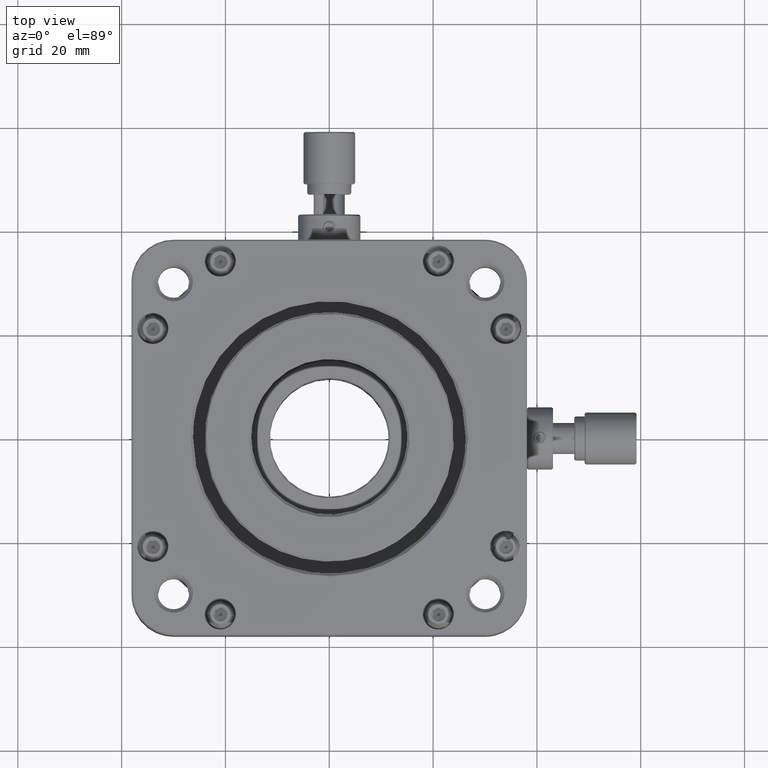
[diagram: clean part render]
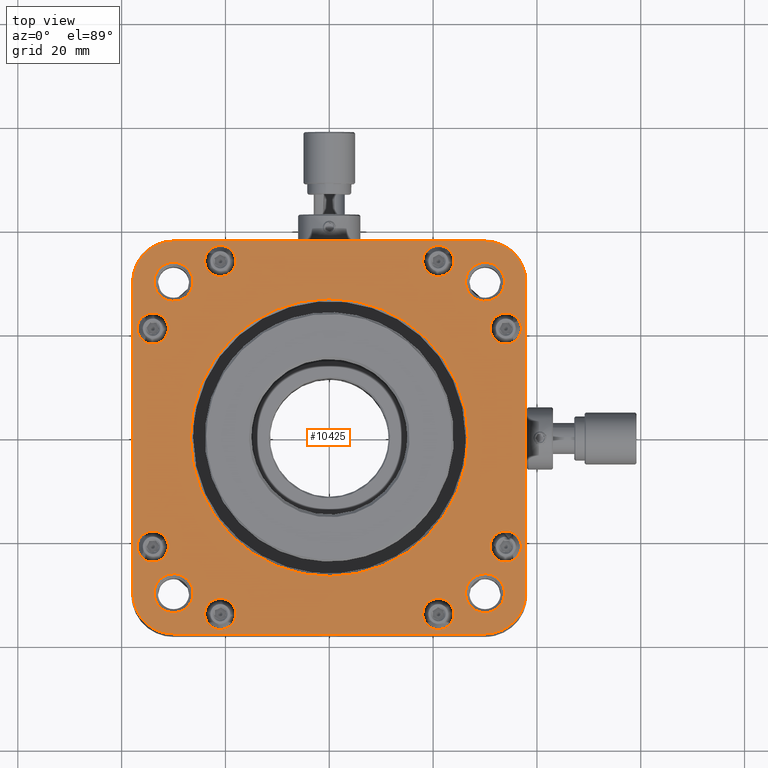
[diagram: same view with one face highlighted and labeled with its STEP entity id]
A machine part, top view. The second image highlights one B-rep face of the part: STEP entity #10425.
In plain terms, the highlighted face is a freeform B-spline surface patch.
Its self-contained STEP definition (entity closure, byte-faithful):
#48 = CARTESIAN_POINT ( 'NONE',  ( 37.85000000000000853, -30.51545517197500601, 11.40000000000000036 ) ) ;
#50 = CARTESIAN_POINT ( 'NONE',  ( -6.941313496011296991, 25.89334703445333474, 11.40000000000000213 ) ) ;
#99 = CARTESIAN_POINT ( 'NONE',  ( -19.15996534181147481, 36.40259665287491941, 11.40000000000000213 ) ) ;
#185 = CARTESIAN_POINT ( 'NONE',  ( -24.04163661262350260, 11.85948202794105555, 11.40000000000000213 ) ) ;
#189 = CARTESIAN_POINT ( 'NONE',  ( 18.00000000000000000, 34.00000000000000000, 11.40000000000000036 ) ) ;
#240 = CARTESIAN_POINT ( 'NONE',  ( 31.59740334715047183, -19.15996534181218891, 11.40000000000000213 ) ) ;
#255 = CARTESIAN_POINT ( 'NONE',  ( -32.03696131627950905, 37.59861714143016087, 11.39999999999999680 ) ) ;
#257 = CARTESIAN_POINT ( 'NONE',  ( -18.59740334702445352, 32.15996534186716360, 11.40000000000000036 ) ) ;
#308 = CARTESIAN_POINT ( 'NONE',  ( 24.00000000000000000, 34.00000000000000000, 11.40000000000000036 ) ) ;
#321 = CARTESIAN_POINT ( 'NONE',  ( 20.60220859865001231, 30.99999337016332035, 11.40000000000000213 ) ) ;
#340 = CARTESIAN_POINT ( 'NONE',  ( -18.59740334699815989, -35.84003465813164979, 11.40000000000000213 ) ) ;
#372 = CARTESIAN_POINT ( 'NONE',  ( 33.75000000000000000, -30.00000000000000000, 11.40000000000000036 ) ) ;
#397 = CARTESIAN_POINT ( 'NONE',  ( 30.51545517238191252, 37.85000000000000853, 11.40000000000000036 ) ) ;
#453 = FACE_BOUND ( 'NONE', #21983, .T. ) ;
#506 = CARTESIAN_POINT ( 'NONE',  ( 34.78053642608412588, -18.07613934883785944, 11.40000000000000213 ) ) ;
#559 = CARTESIAN_POINT ( 'NONE',  ( -26.25000000000000000, 29.50273640821451338, 11.40000000000000036 ) ) ;
#584 = CARTESIAN_POINT ( 'NONE',  ( 33.65483053423956505, 29.02433653231574340, 11.40000000000000213 ) ) ;
#646 = VERTEX_POINT ( 'NONE', #21191 ) ;
#676 = CARTESIAN_POINT ( 'NONE',  ( -33.60220859868201870, 24.00000662986174760, 11.40000000000000213 ) ) ;
#705 = CARTESIAN_POINT ( 'NONE',  ( 18.00000000000000000, 34.00000000000000000, 11.40000000000000036 ) ) ;
#714 = CARTESIAN_POINT ( 'NONE',  ( 22.51555909388043375, 31.38059570649577523, 11.39999999999999858 ) ) ;
#847 = CARTESIAN_POINT ( 'NONE',  ( -37.85000000000000142, -37.85000000000000142, 11.40000000000000036 ) ) ;
#873 = CARTESIAN_POINT ( 'NONE',  ( -33.75000000000002842, -30.49729824390490052, 11.39999999999999858 ) ) ;
#874 = EDGE_CURVE ( 'NONE', #19366, #4247, #6982, .T. ) ;
#904 = CARTESIAN_POINT ( 'NONE',  ( 23.40259665305051939, -35.84003465807457189, 11.40000000000000213 ) ) ;
#908 = ORIENTED_EDGE ( 'NONE', *, *, #15809, .T. ) ;
#1082 = CARTESIAN_POINT ( 'NONE',  ( -21.26600767925605240, -16.32189238701834100, 11.40000000000000036 ) ) ;
#1090 = CARTESIAN_POINT ( 'NONE',  ( 36.61941654396399315, 19.48443583193311923, 11.40000000000000036 ) ) ;
#1091 = CARTESIAN_POINT ( 'NONE',  ( -21.39779140131803814, -31.00000662985345912, 11.40000000000000213 ) ) ;
#1122 = CARTESIAN_POINT ( 'NONE',  ( -33.48023582842861146, -37.05521433861479608, 11.40000000000000213 ) ) ;
#1163 = EDGE_CURVE ( 'NONE', #3298, #21419, #1491, .T. ) ;
#1188 = CARTESIAN_POINT ( 'NONE',  ( -37.00000000000000711, 20.60215793987491750, 11.39999999999999858 ) ) ;
#1210 = CARTESIAN_POINT ( 'NONE',  ( 3.496018730776295769, -26.57866546704567057, 11.40000000000000036 ) ) ;
#1252 = CARTESIAN_POINT ( 'NONE',  ( -36.81337740909322065, -33.93268090055692454, 11.40000000000000213 ) ) ;
#1261 = CARTESIAN_POINT ( 'NONE',  ( -33.75000000000000000, -30.00000000000000000, 11.40000000000000036 ) ) ;
#1353 = CARTESIAN_POINT ( 'NONE',  ( 31.38060233744356609, 19.48442489832646984, 11.40000000000000213 ) ) ;
#1354 = CARTESIAN_POINT ( 'NONE',  ( -24.00000000000000000, -34.00000000000000000, 11.40000000000000036 ) ) ;
#1388 = B_SPLINE_CURVE_WITH_KNOTS ( 'NONE', 3,
 ( #13209, #21449, #17394, #15231, #9522, #9653, #13732, #25998, #7382, #7511, #15365, #17522, #15754, #11304, #21972, #11567, #1188, #17915 ),
 .UNSPECIFIED., .F., .F.,
 ( 4, 2, 2, 2, 2, 2, 2, 2, 4 ),
 ( 0.000000000000000000, 0.1250000000000003608, 0.2500000000000003331, 0.3750000000000002776, 0.5000000000000002220, 0.6250000000000002220, 0.7500000000000001110, 0.8750000000000001110, 1.000000000000000000 ),
 .UNSPECIFIED. ) ;
#1391 = CARTESIAN_POINT ( 'NONE',  ( -37.79971176091195417, -31.02595673932420439, 11.40000000000000213 ) ) ;
#1441 = CARTESIAN_POINT ( 'NONE',  ( 31.38060233744356609, -22.51557510166522036, 11.40000000000000213 ) ) ;
#1476 = CARTESIAN_POINT ( 'NONE',  ( 8.614084115724599755, -25.38592444320619279, 11.40000000000000036 ) ) ;
#1491 = B_SPLINE_CURVE_WITH_KNOTS ( 'NONE', 3,
 ( #2243, #12095, #18449, #24513, #4002, #10453, #26410, #2106, #16551, #9918, #24777, #14254, #4129, #7899, #6143, #14125, #4261, #22498 ),
 .UNSPECIFIED., .F., .F.,
 ( 4, 2, 2, 2, 2, 2, 2, 2, 4 ),
 ( 0.000000000000000000, 0.1249999999999994171, 0.2499999999999988343, 0.3749999999999982236, 0.4999999999999984457, 0.6249999999999986677, 0.7499999999999987788, 0.8749999999999990008, 1.000000000000000000 ),
 .UNSPECIFIED. ) ;
#1610 = CARTESIAN_POINT ( 'NONE',  ( 30.00000000000000000, -37.85000000000000142, 11.40000000000000036 ) ) ;
#1649 = CARTESIAN_POINT ( 'NONE',  ( 31.89446227484753749, 33.27426595973878420, 11.40000000000000568 ) ) ;
#1654 = EDGE_CURVE ( 'NONE', #9532, #10839, #26248, .T. ) ;
#1668 = CARTESIAN_POINT ( 'NONE',  ( -13.40111507909478661, 23.21761657916014343, 11.40000000000000213 ) ) ;
#1754 = CARTESIAN_POINT ( 'NONE',  ( 37.84999999999999432, 30.51542151527943503, 11.39999999999999680 ) ) ;
#1801 = CARTESIAN_POINT ( 'NONE',  ( 37.85000000000000142, -30.00000000000000000, 11.40000000000000036 ) ) ;
#1804 = CARTESIAN_POINT ( 'NONE',  ( 25.38592444270991777, 8.614084117070184732, 11.39999999999999858 ) ) ;
#1860 = CARTESIAN_POINT ( 'NONE',  ( 30.99999999999999645, -20.60219259208583864, 11.40000000000000213 ) ) ;
#1865 = CARTESIAN_POINT ( 'NONE',  ( 30.97566346784528335, -26.34516946583264030, 11.40000000000000213 ) ) ;
#1867 = CARTESIAN_POINT ( 'NONE',  ( -31.89446227489938579, -33.27426595964509914, 11.40000000000000391 ) ) ;
#1888 = CARTESIAN_POINT ( 'NONE',  ( 32.52789406012773554, 37.44969432165518697, 11.40000000000000391 ) ) ;
#1920 = B_SPLINE_SURFACE_WITH_KNOTS ( 'NONE', 1, 1, ( 
 ( #6772, #4741 ),
 ( #12997, #847 ) ),
 .UNSPECIFIED., .F., .F., .F.,
 ( 2, 2 ),
 ( 2, 2 ),
 ( 0.000000000000000000, 1.000000000000000000 ),
 ( 0.000000000000000000, 1.000000000000000000 ),
 .UNSPECIFIED. ) ;
#1939 = CARTESIAN_POINT ( 'NONE',  ( -23.21761111927439103, 13.40111143218354783, 11.40000000000000213 ) ) ;
#1983 = CARTESIAN_POINT ( 'NONE',  ( -18.59739397106917735, 35.84004403424437868, 11.40000000000000213 ) ) ;
#1997 = CARTESIAN_POINT ( 'NONE',  ( 33.75000000000000711, -29.50270175608883605, 11.40000000000000391 ) ) ;
#2068 = CARTESIAN_POINT ( 'NONE',  ( 35.91523693223161473, -35.18634417497698763, 11.40000000000000036 ) ) ;
#2071 = CARTESIAN_POINT ( 'NONE',  ( -20.15706408746925149, 17.67314406302158503, 11.40000000000000213 ) ) ;
#2106 = CARTESIAN_POINT ( 'NONE',  ( -30.97566854206113263, 33.65484278476796476, 11.40000000000000036 ) ) ;
#2135 = EDGE_CURVE ( 'NONE', #24564, #22469, #13968, .T. ) ;
#2155 = CARTESIAN_POINT ( 'NONE',  ( 29.50275241504388646, -33.75000662999794798, 11.40000000000000568 ) ) ;
#2181 = ORIENTED_EDGE ( 'NONE', *, *, #19672, .T. ) ;
#2184 = CARTESIAN_POINT ( 'NONE',  ( 33.65484941563911292, 30.97565253433620214, 11.40000000000000036 ) ) ;
#2205 = CARTESIAN_POINT ( 'NONE',  ( -37.00000000000000000, -21.00000000000000000, 11.40000000000000036 ) ) ;
#2209 = CARTESIAN_POINT ( 'NONE',  ( 22.84004403419249130, 31.59739397105390424, 11.40000000000000036 ) ) ;
#2243 = CARTESIAN_POINT ( 'NONE',  ( -33.75000000000000000, 30.00000000000000000, 11.40000000000000036 ) ) ;
#2338 = FACE_BOUND ( 'NONE', #16913, .T. ) ;
#2345 = B_SPLINE_CURVE_WITH_KNOTS ( 'NONE', 3,
 ( #19891, #23664, #1391, #21646, #11371, #19620, #1252, #7319, #13534, #9461, #17717, #22041, #1122, #17855, #5551, #26072, #9322, #15561 ),
 .UNSPECIFIED., .F., .F.,
 ( 4, 2, 2, 2, 2, 2, 2, 2, 4 ),
 ( 0.000000000000000000, 0.1250000000000000000, 0.2500000000000000000, 0.3750000000000000000, 0.5000000000000000000, 0.6250000000000000000, 0.7500000000000000000, 0.8750000000000000000, 1.000000000000000000 ),
 .UNSPECIFIED. ) ;
#2415 = B_SPLINE_CURVE_WITH_KNOTS ( 'NONE', 3,
 ( #10060, #8305, #18318, #22773, #18724, #8042, #12366, #6286, #16561, #20633, #16295, #18595, #99, #1983, #24788, #14536, #4271, #16692 ),
 .UNSPECIFIED., .F., .F.,
 ( 4, 2, 2, 2, 2, 2, 2, 2, 4 ),
 ( 0.000000000000000000, 0.1250000000000000000, 0.2500000000000000000, 0.3750000000000000000, 0.5000000000000000000, 0.6250000000000000000, 0.7500000000000000000, 0.8750000000000000000, 1.000000000000000000 ),
 .UNSPECIFIED. ) ;
#2418 = CARTESIAN_POINT ( 'NONE',  ( 33.75000000000000000, -30.00000000000000000, 11.40000000000000036 ) ) ;
#2444 = CARTESIAN_POINT ( 'NONE',  ( 33.75000000000000711, 30.49729824387985033, 11.40000000000000391 ) ) ;
#2467 = CARTESIAN_POINT ( 'NONE',  ( 19.15996534184772315, 31.59740334706486564, 11.39999999999999680 ) ) ;
#2494 = CARTESIAN_POINT ( 'NONE',  ( -33.75000000000000000, -30.00000000000000000, 11.40000000000000036 ) ) ;
#2640 = EDGE_CURVE ( 'NONE', #21419, #3298, #4584, .T. ) ;
#2658 = ORIENTED_EDGE ( 'NONE', *, *, #7311, .T. ) ;
#2709 = CARTESIAN_POINT ( 'NONE',  ( -28.10554279954768120, 26.72574629091762333, 11.40000000000000391 ) ) ;
#2831 = EDGE_CURVE ( 'NONE', #13696, #25488, #5234, .T. ) ;
#2839 = CARTESIAN_POINT ( 'NONE',  ( 26.75000000000000711, -1.756413197289793837, 11.40000000000000213 ) ) ;
#2841 = CARTESIAN_POINT ( 'NONE',  ( -29.50275241506484392, 26.25000662999796219, 11.40000000000000213 ) ) ;
#2877 = VERTEX_POINT ( 'NONE', #25349 ) ;
#2924 = CARTESIAN_POINT ( 'NONE',  ( 22.51555909395457888, -36.61940429352096515, 11.40000000000000213 ) ) ;
#2995 = VERTEX_POINT ( 'NONE', #17386 ) ;
#3056 = CARTESIAN_POINT ( 'NONE',  ( 37.00000000000000000, -21.00000000000000000, 11.40000000000000036 ) ) ;
#3106 = CARTESIAN_POINT ( 'NONE',  ( 19.15995596572310689, -31.59739397107143333, 11.40000000000000036 ) ) ;
#3111 = CARTESIAN_POINT ( 'NONE',  ( -8.614081603397055531, -25.38591837681087426, 11.40000000000000213 ) ) ;
#3204 = CARTESIAN_POINT ( 'NONE',  ( -20.60220859864170961, 31.00000662983667254, 11.39999999999999858 ) ) ;
#3237 = CARTESIAN_POINT ( 'NONE',  ( 24.00000000000000711, -33.60215793984986732, 11.40000000000000036 ) ) ;
#3241 = CARTESIAN_POINT ( 'NONE',  ( -16.32189603473623407, -21.26601313861458209, 11.40000000000000036 ) ) ;
#3249 = CARTESIAN_POINT ( 'NONE',  ( -19.48443583197830975, -31.38058345605670851, 11.40000000000000213 ) ) ;
#3298 = VERTEX_POINT ( 'NONE', #8304 ) ;
#3300 = B_SPLINE_CURVE_WITH_KNOTS ( 'NONE', 3,
 ( #6048, #18221, #9555, #20396, #26452, #11863, #20125, #17944, #22000, #13760, #5779, #3909, #18080, #22540, #14294, #17810, #5647, #3780 ),
 .UNSPECIFIED., .F., .F.,
 ( 4, 2, 2, 2, 2, 2, 2, 2, 4 ),
 ( 0.000000000000000000, 0.1250000000000000000, 0.2500000000000000000, 0.3750000000000000000, 0.5000000000000000000, 0.6250000000000000000, 0.7500000000000000000, 0.8750000000000000000, 1.000000000000000000 ),
 .UNSPECIFIED. ) ;
#3323 = CARTESIAN_POINT ( 'NONE',  ( 37.00000000000002132, 21.39784206024583568, 11.39999999999999858 ) ) ;
#3380 = CARTESIAN_POINT ( 'NONE',  ( 25.38591837643604521, -8.614081604123567715, 11.40000000000000036 ) ) ;
#3390 = CARTESIAN_POINT ( 'NONE',  ( 33.21946357385849780, 18.07613934887751128, 11.40000000000000213 ) ) ;
#3462 = CARTESIAN_POINT ( 'NONE',  ( 19.15996534183294031, -36.40259665291624458, 11.39999999999999858 ) ) ;
#3524 = CARTESIAN_POINT ( 'NONE',  ( 31.07612046748871748, 20.21947450748300668, 11.40000000000000213 ) ) ;
#3594 = CARTESIAN_POINT ( 'NONE',  ( 34.39779140136462843, 24.00000662983669031, 11.40000000000000213 ) ) ;
#3603 = EDGE_CURVE ( 'NONE', #10350, #12766, #24864, .T. ) ;
#3649 = CARTESIAN_POINT ( 'NONE',  ( -26.57866875026213904, -3.496002226578124095, 11.40000000000000036 ) ) ;
#3780 = CARTESIAN_POINT ( 'NONE',  ( -26.25000000000000000, -30.00000000000000000, 11.40000000000000036 ) ) ;
#3832 = CARTESIAN_POINT ( 'NONE',  ( 36.81338286836544427, -33.93268454802056766, 11.40000000000000036 ) ) ;
#3891 = CARTESIAN_POINT ( 'NONE',  ( -29.50275241492217404, -33.74999337004391009, 11.40000000000000213 ) ) ;
#3909 = CARTESIAN_POINT ( 'NONE',  ( -28.10553772502928283, -26.72573404038439193, 11.40000000000000213 ) ) ;
#3911 = CARTESIAN_POINT ( 'NONE',  ( 37.85000000000000142, 30.00000000000000000, 11.40000000000000036 ) ) ;
#3959 = CARTESIAN_POINT ( 'NONE',  ( 34.78977175773689368, -36.24069550409495122, 11.40000000000000213 ) ) ;
#4002 = CARTESIAN_POINT ( 'NONE',  ( -33.00325288079779540, 32.30003860194261733, 11.40000000000000391 ) ) ;
#4009 = CARTESIAN_POINT ( 'NONE',  ( 37.00000000000001421, -21.39780740791668734, 11.40000000000000213 ) ) ;
#4021 = CARTESIAN_POINT ( 'NONE',  ( 31.89446227489289853, -26.72573404033271416, 11.40000000000000036 ) ) ;
#4048 = CARTESIAN_POINT ( 'NONE',  ( 33.00325288048886563, -32.30003860213139433, 11.40000000000000213 ) ) ;
#4090 = CARTESIAN_POINT ( 'NONE',  ( 37.79972148372178964, -31.02594151458385241, 11.40000000000000036 ) ) ;
#4103 = VERTEX_POINT ( 'NONE', #14006 ) ;
#4127 = ORIENTED_EDGE ( 'NONE', *, *, #26116, .T. ) ;
#4129 = CARTESIAN_POINT ( 'NONE',  ( -27.69996139796093715, 33.00325288070660434, 11.40000000000000036 ) ) ;
#4226 = VERTEX_POINT ( 'NONE', #16166 ) ;
#4245 = EDGE_CURVE ( 'NONE', #11506, #15726, #20028, .T. ) ;
#4247 = VERTEX_POINT ( 'NONE', #372 ) ;
#4261 = CARTESIAN_POINT ( 'NONE',  ( -26.25000000000001421, 30.49729824401101652, 11.40000000000000213 ) ) ;
#4271 = CARTESIAN_POINT ( 'NONE',  ( -18.00000000000000711, 34.39784206016062740, 11.40000000000000036 ) ) ;
#4277 = CARTESIAN_POINT ( 'NONE',  ( 31.07613934890118657, -20.21946357380968351, 11.40000000000000036 ) ) ;
#4336 = CARTESIAN_POINT ( 'NONE',  ( 33.75000000000000000, 30.00000000000000000, 11.40000000000000036 ) ) ;
#4356 = CARTESIAN_POINT ( 'NONE',  ( 17.67314406212983258, 20.15706408872999589, 11.40000000000000213 ) ) ;
#4442 = CARTESIAN_POINT ( 'NONE',  ( 26.34515058436089419, -30.97565253434462562, 11.39999999999999858 ) ) ;
#4491 = FACE_BOUND ( 'NONE', #8842, .T. ) ;
#4496 = CARTESIAN_POINT ( 'NONE',  ( -34.39779140131793866, -18.00000662985339872, 11.40000000000000213 ) ) ;
#4506 = ORIENTED_EDGE ( 'NONE', *, *, #16186, .T. ) ;
#4515 = CARTESIAN_POINT ( 'NONE',  ( -32.30003860201571797, -33.00325288065673845, 11.40000000000000213 ) ) ;
#4554 = CARTESIAN_POINT ( 'NONE',  ( -30.00000000000000000, 37.85000000000000142, 11.40000000000000036 ) ) ;
#4576 = CARTESIAN_POINT ( 'NONE',  ( -35.51555909384533294, 23.61940429352927495, 11.39999999999999858 ) ) ;
#4584 = B_SPLINE_CURVE_WITH_KNOTS ( 'NONE', 3,
 ( #4590, #559, #25244, #6744, #14988, #21209, #2709, #21339, #2841, #11060, #21603, #11594, #23494, #5507, #23749, #15388, #19850, #21474 ),
 .UNSPECIFIED., .F., .F.,
 ( 4, 2, 2, 2, 2, 2, 2, 2, 4 ),
 ( 0.000000000000000000, 0.1250000000000000000, 0.2500000000000000000, 0.3750000000000000000, 0.5000000000000000000, 0.6250000000000000000, 0.7500000000000000000, 0.8750000000000000000, 1.000000000000000000 ),
 .UNSPECIFIED. ) ;
#4590 = CARTESIAN_POINT ( 'NONE',  ( -26.25000000000000000, 30.00000000000000000, 11.40000000000000036 ) ) ;
#4615 = FACE_BOUND ( 'NONE', #25913, .T. ) ;
#4619 = CARTESIAN_POINT ( 'NONE',  ( -31.59739397103596303, -19.15995596582541438, 11.40000000000000391 ) ) ;
#4741 = CARTESIAN_POINT ( 'NONE',  ( 37.85000000000000142, -37.85000000000000142, 11.40000000000000036 ) ) ;
#4745 = CARTESIAN_POINT ( 'NONE',  ( -31.00000000000002132, -20.60215793984984245, 11.39999999999999858 ) ) ;
#4763 = CARTESIAN_POINT ( 'NONE',  ( -33.27424707819544381, -31.89447320837684430, 11.40000000000000213 ) ) ;
#4807 = CARTESIAN_POINT ( 'NONE',  ( -37.85000000000000142, 30.51545517224448290, 11.40000000000000036 ) ) ;
#4830 = CARTESIAN_POINT ( 'NONE',  ( -31.59739397106942604, 22.84004403421636908, 11.40000000000000391 ) ) ;
#4836 = CARTESIAN_POINT ( 'NONE',  ( 18.07613934893264585, -33.21946357377409953, 11.40000000000000213 ) ) ;
#4865 = ORIENTED_EDGE ( 'NONE', *, *, #10841, .T. ) ;
#4866 = FACE_BOUND ( 'NONE', #10168, .T. ) ;
#4945 = VERTEX_POINT ( 'NONE', #25780 ) ;
#4967 = CARTESIAN_POINT ( 'NONE',  ( 22.51556416804189809, -31.38058345603506183, 11.40000000000000213 ) ) ;
#5050 = CARTESIAN_POINT ( 'NONE',  ( 35.51556416810640826, -18.38058345609437083, 11.40000000000000213 ) ) ;
#5097 = CARTESIAN_POINT ( 'NONE',  ( 20.21945849969164399, -31.07612709845319898, 11.40000000000000213 ) ) ;
#5101 = CARTESIAN_POINT ( 'NONE',  ( -6.941314777386457635, -25.89335347431470780, 11.39999999999999858 ) ) ;
#5234 = B_SPLINE_CURVE_WITH_KNOTS ( 'NONE', 3,
 ( #3911, #1754, #18081, #9963, #18222, #26453, #12136, #7946, #16192, #24420, #5914, #14163, #20398, #1888, #10361, #23064, #397, #21182 ),
 .UNSPECIFIED., .F., .F.,
 ( 4, 2, 2, 2, 2, 2, 2, 2, 4 ),
 ( 0.000000000000000000, 0.1249999999999992506, 0.2499999999999993339, 0.3749999999999993894, 0.4999999999999994449, 0.6249999999999995559, 0.7499999999999996669, 0.8749999999999998890, 1.000000000000000000 ),
 .UNSPECIFIED. ) ;
#5240 = CARTESIAN_POINT ( 'NONE',  ( 34.78054150028118130, 18.07612709845322385, 11.39999999999999858 ) ) ;
#5311 = CARTESIAN_POINT ( 'NONE',  ( 34.78053642608413298, 23.92386065116205529, 11.40000000000000213 ) ) ;
#5335 = EDGE_CURVE ( 'NONE', #9770, #6811, #8328, .T. ) ;
#5343 = CARTESIAN_POINT ( 'NONE',  ( 37.85000000000000142, 30.00000000000000000, 11.40000000000000036 ) ) ;
#5366 = B_SPLINE_CURVE_WITH_KNOTS ( 'NONE', 3,
 ( #26367, #16113, #10016, #8131, #24871, #16249, #14481, #16380, #18134, #18547, #22321, #6103, #14351, #22592, #8261, #16510, #24477, #2205 ),
 .UNSPECIFIED., .F., .F.,
 ( 4, 2, 2, 2, 2, 2, 2, 2, 4 ),
 ( 0.000000000000000000, 0.1250000000000003608, 0.2500000000000003331, 0.3750000000000002776, 0.5000000000000002220, 0.6250000000000002220, 0.7500000000000001110, 0.8750000000000001110, 1.000000000000000000 ),
 .UNSPECIFIED. ) ;
#5448 = CARTESIAN_POINT ( 'NONE',  ( 36.92387953251131449, 21.78052549261092352, 11.40000000000000036 ) ) ;
#5507 = CARTESIAN_POINT ( 'NONE',  ( -33.00326225676653991, 27.69995202168263759, 11.40000000000000213 ) ) ;
#5513 = CARTESIAN_POINT ( 'NONE',  ( 36.92386065110374460, 20.21946357387634308, 11.40000000000000036 ) ) ;
#5551 = CARTESIAN_POINT ( 'NONE',  ( -32.03697654102845149, -37.59860741860897093, 11.40000000000000213 ) ) ;
#5559 = CARTESIAN_POINT ( 'NONE',  ( 37.85000000000000142, -30.00000000000000000, 11.40000000000000036 ) ) ;
#5609 = CARTESIAN_POINT ( 'NONE',  ( 35.51555909396289223, -23.61940429352089765, 11.39999999999999858 ) ) ;
#5623 = B_SPLINE_CURVE_WITH_KNOTS ( 'NONE', 3,
 ( #2418, #22549, #12407, #24957, #4048, #14699, #18499, #8210, #20671, #2155, #10368, #10500, #18634, #8343, #22941, #4442, #24823, #6323 ),
 .UNSPECIFIED., .F., .F.,
 ( 4, 2, 2, 2, 2, 2, 2, 2, 4 ),
 ( 0.000000000000000000, 0.1249999999999995004, 0.2499999999999990008, 0.3749999999999985012, 0.4999999999999987788, 0.6249999999999990008, 0.7499999999999993339, 0.8749999999999995559, 1.000000000000000000 ),
 .UNSPECIFIED. ) ;
#5635 = EDGE_CURVE ( 'NONE', #22282, #12319, #14792, .T. ) ;
#5647 = CARTESIAN_POINT ( 'NONE',  ( -26.25000000000001066, -29.50270175599422018, 11.40000000000000036 ) ) ;
#5680 = CARTESIAN_POINT ( 'NONE',  ( 29.50275241515941005, 33.74999337001774791, 11.40000000000000391 ) ) ;
#5732 = CARTESIAN_POINT ( 'NONE',  ( -26.25000000000000000, -30.00000000000000000, 11.40000000000000036 ) ) ;
#5759 = CARTESIAN_POINT ( 'NONE',  ( -26.34516946581049268, -30.97566346783871793, 11.40000000000000213 ) ) ;
#5779 = CARTESIAN_POINT ( 'NONE',  ( -29.02433653223255661, -26.34516946578096253, 11.40000000000000213 ) ) ;
#5815 = CARTESIAN_POINT ( 'NONE',  ( 33.00326225693064686, 32.30004797815327322, 11.40000000000000036 ) ) ;
#5831 = CARTESIAN_POINT ( 'NONE',  ( 26.57866875026214615, 3.496002226242932220, 11.40000000000000213 ) ) ;
#5878 = CARTESIAN_POINT ( 'NONE',  ( 36.92386065114347105, -21.78053642608500695, 11.40000000000000036 ) ) ;
#5891 = CARTESIAN_POINT ( 'NONE',  ( 26.34516946581049623, -29.02433653216124299, 11.40000000000000213 ) ) ;
#5914 = CARTESIAN_POINT ( 'NONE',  ( 34.78976810995790458, 36.24069004498631585, 11.39999999999999858 ) ) ;
#5967 = CARTESIAN_POINT ( 'NONE',  ( -11.85947951484377505, 24.04163054662715027, 11.40000000000000213 ) ) ;
#6048 = CARTESIAN_POINT ( 'NONE',  ( -33.75000000000000000, -30.00000000000000000, 11.40000000000000036 ) ) ;
#6103 = CARTESIAN_POINT ( 'NONE',  ( -35.51556416807881078, -23.61941654391968015, 11.40000000000000036 ) ) ;
#6143 = CARTESIAN_POINT ( 'NONE',  ( -26.72575292180446027, 31.89447320827078869, 11.40000000000000036 ) ) ;
#6260 = CARTESIAN_POINT ( 'NONE',  ( -20.21945849967492137, -36.92387290154678681, 11.40000000000000213 ) ) ;
#6286 = CARTESIAN_POINT ( 'NONE',  ( -21.78054150040579984, 36.92387290154261592, 11.40000000000000213 ) ) ;
#6323 = CARTESIAN_POINT ( 'NONE',  ( 26.25000000000000000, -30.00000000000000000, 11.40000000000000036 ) ) ;
#6396 = EDGE_LOOP ( 'NONE', ( #19221, #7063 ) ) ;
#6452 = CARTESIAN_POINT ( 'NONE',  ( 31.00000000000000000, 21.00000000000000000, 11.40000000000000036 ) ) ;
#6561 = CARTESIAN_POINT ( 'NONE',  ( 36.61939766255645878, -19.48442489846212311, 11.39999999999999858 ) ) ;
#6642 = CARTESIAN_POINT ( 'NONE',  ( 18.59739397103300718, 32.15995596581584692, 11.39999999999999680 ) ) ;
#6646 = CARTESIAN_POINT ( 'NONE',  ( -32.48443583186415395, -18.38058345610396671, 11.40000000000000391 ) ) ;
#6666 = ORIENTED_EDGE ( 'NONE', *, *, #13649, .T. ) ;
#6732 = CARTESIAN_POINT ( 'NONE',  ( -37.00000000000000000, 21.00000000000000000, 11.40000000000000036 ) ) ;
#6744 = CARTESIAN_POINT ( 'NONE',  ( -26.72573404032897670, 28.10553772513690873, 11.39999999999999503 ) ) ;
#6769 = CARTESIAN_POINT ( 'NONE',  ( 29.02433653214275111, 26.34516946587075026, 11.40000000000000391 ) ) ;
#6772 = CARTESIAN_POINT ( 'NONE',  ( 37.85000000000000142, 37.85000000000000142, 11.40000000000000036 ) ) ;
#6777 = CARTESIAN_POINT ( 'NONE',  ( -34.78054150032507152, -18.07612709845320964, 11.39999999999999858 ) ) ;
#6811 = VERTEX_POINT ( 'NONE', #1261 ) ;
#6982 = B_SPLINE_CURVE_WITH_KNOTS ( 'NONE', 3,
 ( #9939, #8052, #5891, #18059, #26563, #14143, #12114, #20375, #13872, #11708, #1865, #4021, #20101, #12247, #20507, #19960, #1997, #26145 ),
 .UNSPECIFIED., .F., .F.,
 ( 4, 2, 2, 2, 2, 2, 2, 2, 4 ),
 ( 0.000000000000000000, 0.1250000000000007494, 0.2500000000000014988, 0.3750000000000022204, 0.5000000000000029976, 0.6250000000000028866, 0.7500000000000018874, 0.8750000000000009992, 1.000000000000000000 ),
 .UNSPECIFIED. ) ;
#7063 = ORIENTED_EDGE ( 'NONE', *, *, #19415, .T. ) ;
#7107 = CARTESIAN_POINT ( 'NONE',  ( -24.00000000000000000, 34.00000000000000000, 11.40000000000000036 ) ) ;
#7228 = CARTESIAN_POINT ( 'NONE',  ( 18.00000000000000000, -34.00000000000000000, 11.40000000000000036 ) ) ;
#7240 = CARTESIAN_POINT ( 'NONE',  ( -36.24069004493448176, 34.78976811009778203, 11.39999999999999858 ) ) ;
#7272 = CARTESIAN_POINT ( 'NONE',  ( 18.38058345599960219, -32.48443583203537344, 11.39999999999999858 ) ) ;
#7288 = EDGE_LOOP ( 'NONE', ( #22422, #14226 ) ) ;
#7302 = B_SPLINE_CURVE_WITH_KNOTS ( 'NONE', 3,
 ( #21207, #2839, #11058, #13758, #3380, #21601, #9554, #11326, #7407, #17809, #17943, #26166, #21729, #1476, #26029, #1210, #21999, #9277, #17544, #5101, #3111, #19574, #7674, #3241, #13491, #24143, #1082, #11592, #23876, #13892, #11729, #3649, #19980, #11862 ),
 .UNSPECIFIED., .F., .F.,
 ( 4, 2, 2, 2, 2, 2, 2, 2, 2, 2, 2, 2, 2, 2, 2, 2, 4 ),
 ( 0.000000000000000000, 0.06249999999999998612, 0.1249999999999999445, 0.1874999999999999167, 0.2499999999999998612, 0.3124999999999998335, 0.3749999999999998335, 0.4374999999999997780, 0.4999999999999997780, 0.5624999999999997780, 0.6249999999999997780, 0.6874999999999997780, 0.7499999999999997780, 0.8124999999999996669, 0.8749999999999997780, 0.9374999999999998890, 1.000000000000000000 ),
 .UNSPECIFIED. ) ;
#7311 = EDGE_CURVE ( 'NONE', #25488, #15702, #9588, .T. ) ;
#7319 = CARTESIAN_POINT ( 'NONE',  ( -36.24069550405673823, -34.78977175785085052, 11.40000000000000213 ) ) ;
#7352 = CARTESIAN_POINT ( 'NONE',  ( 32.15995596577305804, 23.40260602893253150, 11.40000000000000213 ) ) ;
#7382 = CARTESIAN_POINT ( 'NONE',  ( -33.60220859872234911, 18.00000662985338806, 11.40000000000000036 ) ) ;
#7407 = CARTESIAN_POINT ( 'NONE',  ( 20.15706408721036880, -17.67314406335428600, 11.40000000000000213 ) ) ;
#7414 = CARTESIAN_POINT ( 'NONE',  ( -20.21946357383108150, -31.07613934887558216, 11.40000000000000213 ) ) ;
#7418 = B_SPLINE_CURVE_WITH_KNOTS ( 'NONE', 3,
 ( #1354, #22141, #24021, #9427, #17682, #9563, #11871, #19583, #1091, #25902, #7414, #3249, #13500, #11466, #7547, #20131, #9287, #24284 ),
 .UNSPECIFIED., .F., .F.,
 ( 4, 2, 2, 2, 2, 2, 2, 2, 4 ),
 ( 0.000000000000000000, 0.1250000000000000000, 0.2500000000000000000, 0.3750000000000000000, 0.5000000000000000000, 0.6250000000000000000, 0.7500000000000000000, 0.8750000000000000000, 1.000000000000000000 ),
 .UNSPECIFIED. ) ;
#7445 = CARTESIAN_POINT ( 'NONE',  ( 26.25000000000000000, 30.00000000000000000, 11.40000000000000036 ) ) ;
#7483 = CARTESIAN_POINT ( 'NONE',  ( 31.00000000000000000, 21.00000000000000000, 11.40000000000000036 ) ) ;
#7503 = CARTESIAN_POINT ( 'NONE',  ( 30.99999999999999645, -21.39784206016024726, 11.39999999999999858 ) ) ;
#7511 = CARTESIAN_POINT ( 'NONE',  ( -34.39779140127760826, 17.99999337014661194, 11.40000000000000213 ) ) ;
#7546 = CARTESIAN_POINT ( 'NONE',  ( 35.51555909390935284, 18.38059570647907748, 11.39999999999999858 ) ) ;
#7547 = CARTESIAN_POINT ( 'NONE',  ( -18.38060233744352345, -32.48442489832468993, 11.40000000000000213 ) ) ;
#7574 = CARTESIAN_POINT ( 'NONE',  ( 26.34516946583022445, 30.97566346785853497, 11.40000000000000036 ) ) ;
#7622 = CARTESIAN_POINT ( 'NONE',  ( 31.38058345605697497, 22.51556416806797145, 11.39999999999999858 ) ) ;
#7674 = CARTESIAN_POINT ( 'NONE',  ( -13.40111143181247932, -23.21761111957163592, 11.40000000000000213 ) ) ;
#7753 = CARTESIAN_POINT ( 'NONE',  ( 37.00000000000000000, 21.00000000000000000, 11.40000000000000036 ) ) ;
#7860 = CARTESIAN_POINT ( 'NONE',  ( 37.05521433859414060, -33.48023582849155133, 11.40000000000000036 ) ) ;
#7899 = CARTESIAN_POINT ( 'NONE',  ( -26.99673774313992425, 32.30004797819251650, 11.40000000000000568 ) ) ;
#7925 = CARTESIAN_POINT ( 'NONE',  ( -26.99674711938497040, -32.30003860205750499, 11.40000000000000213 ) ) ;
#7946 = CARTESIAN_POINT ( 'NONE',  ( 36.24069550405569373, 34.78977175776392983, 11.40000000000000213 ) ) ;
#8042 = CARTESIAN_POINT ( 'NONE',  ( -22.84004403430299490, 36.40260602888157848, 11.40000000000000213 ) ) ;
#8052 = CARTESIAN_POINT ( 'NONE',  ( 26.25000000000000711, -29.50273640818839738, 11.40000000000000036 ) ) ;
#8129 = CARTESIAN_POINT ( 'NONE',  ( -26.74999999999998224, 1.756413197030446183, 11.40000000000000036 ) ) ;
#8131 = CARTESIAN_POINT ( 'NONE',  ( -31.38058345608032340, -22.51556416807880012, 11.39999999999999858 ) ) ;
#8149 = CARTESIAN_POINT ( 'NONE',  ( -23.40260602894038300, -35.84004403423165996, 11.40000000000000213 ) ) ;
#8195 = CARTESIAN_POINT ( 'NONE',  ( -30.51542151521446300, 37.85000000000000853, 11.39999999999999680 ) ) ;
#8210 = CARTESIAN_POINT ( 'NONE',  ( 30.97566854224583111, -33.65484278475226887, 11.39999999999999858 ) ) ;
#8224 = CARTESIAN_POINT ( 'NONE',  ( -37.00000000000000000, -21.00000000000000000, 11.40000000000000036 ) ) ;
#8260 = CARTESIAN_POINT ( 'NONE',  ( 6.941314777738652353, 25.89335347419304867, 11.39999999999999858 ) ) ;
#8261 = CARTESIAN_POINT ( 'NONE',  ( -36.61939766255645168, -22.51557510167531362, 11.40000000000000213 ) ) ;
#8282 = CARTESIAN_POINT ( 'NONE',  ( -21.78053642616883678, -36.92386065109096194, 11.40000000000000213 ) ) ;
#8304 = CARTESIAN_POINT ( 'NONE',  ( -33.75000000000000000, 30.00000000000000000, 11.40000000000000036 ) ) ;
#8305 = CARTESIAN_POINT ( 'NONE',  ( -23.99999999999995737, 34.39780740793572988, 11.40000000000000036 ) ) ;
#8306 = EDGE_CURVE ( 'NONE', #23260, #20857, #14393, .T. ) ;
#8328 = B_SPLINE_CURVE_WITH_KNOTS ( 'NONE', 3,
 ( #16041, #24258, #5759, #9942, #7925, #16173, #24400, #22384, #3891, #12117, #20377, #1867, #4515, #13283, #4763, #23149, #873, #2494 ),
 .UNSPECIFIED., .F., .F.,
 ( 4, 2, 2, 2, 2, 2, 2, 2, 4 ),
 ( 0.000000000000000000, 0.1249999999999998890, 0.2499999999999997780, 0.3749999999999996669, 0.4999999999999995559, 0.6249999999999994449, 0.7499999999999993339, 0.8749999999999992228, 1.000000000000000000 ),
 .UNSPECIFIED. ) ;
#8343 = CARTESIAN_POINT ( 'NONE',  ( 26.99673774312707053, -32.30004797828414098, 11.39999999999999858 ) ) ;
#8346 = EDGE_CURVE ( 'NONE', #12319, #22282, #7302, .T. ) ;
#8353 = CARTESIAN_POINT ( 'NONE',  ( -34.78054150034525094, 23.92387290153842372, 11.39999999999999858 ) ) ;
#8382 = CARTESIAN_POINT ( 'NONE',  ( 30.00000000000000000, -37.85000000000000142, 11.40000000000000036 ) ) ;
#8386 = CARTESIAN_POINT ( 'NONE',  ( 23.40260602897363995, 35.84004403416809481, 11.40000000000000213 ) ) ;
#8391 = CARTESIAN_POINT ( 'NONE',  ( -16.32189238745392501, 21.26600767902600353, 11.40000000000000213 ) ) ;
#8463 = CARTESIAN_POINT ( 'NONE',  ( -35.18633953237262801, 35.91523228975348303, 11.40000000000000036 ) ) ;
#8523 = CARTESIAN_POINT ( 'NONE',  ( 28.10553772511908122, 26.72573404029460775, 11.40000000000000568 ) ) ;
#8526 = CARTESIAN_POINT ( 'NONE',  ( 21.78054150031011105, 31.07612709843651544, 11.40000000000000391 ) ) ;
#8616 = CARTESIAN_POINT ( 'NONE',  ( -34.39779140131793866, 23.99999337013826306, 11.40000000000000213 ) ) ;
#8653 = CARTESIAN_POINT ( 'NONE',  ( -33.60220859868201870, -17.99999337014661194, 11.40000000000000213 ) ) ;
#8719 = B_SPLINE_CURVE_WITH_KNOTS ( 'NONE', 3,
 ( #21422, #19928, #15334, #23827, #904, #13704, #2924, #11139, #25970, #19391, #9096, #21811, #3462, #9496, #21945, #11276, #25840, #7228 ),
 .UNSPECIFIED., .F., .F.,
 ( 4, 2, 2, 2, 2, 2, 2, 2, 4 ),
 ( 0.000000000000000000, 0.1250000000000000000, 0.2500000000000000000, 0.3750000000000000000, 0.5000000000000000000, 0.6250000000000000000, 0.7500000000000000000, 0.8750000000000000000, 1.000000000000000000 ),
 .UNSPECIFIED. ) ;
#8731 = ORIENTED_EDGE ( 'NONE', *, *, #874, .T. ) ;
#8768 = CARTESIAN_POINT ( 'NONE',  ( 19.15995596576792082, 36.40260602895249065, 11.40000000000000036 ) ) ;
#8777 = CARTESIAN_POINT ( 'NONE',  ( 30.97566854204400855, 26.34515721516412157, 11.39999999999999858 ) ) ;
#8842 = EDGE_LOOP ( 'NONE', ( #13503, #8731 ) ) ;
#8895 = CARTESIAN_POINT ( 'NONE',  ( 20.21945849969449327, 36.92387290154259460, 11.40000000000000213 ) ) ;
#8974 = CARTESIAN_POINT ( 'NONE',  ( -35.91523693225612135, 35.18634417487530897, 11.39999999999999680 ) ) ;
#8976 = CARTESIAN_POINT ( 'NONE',  ( -20.21945849973864284, 31.07612709843650833, 11.40000000000000213 ) ) ;
#9096 = CARTESIAN_POINT ( 'NONE',  ( 20.21946357387745152, -36.92386065112054894, 11.40000000000000213 ) ) ;
#9154 = CARTESIAN_POINT ( 'NONE',  ( 31.00000000000000000, 21.00000000000000000, 11.40000000000000036 ) ) ;
#9277 = CARTESIAN_POINT ( 'NONE',  ( -1.756396692467944609, -26.75000328309182152, 11.39999999999999858 ) ) ;
#9287 = CARTESIAN_POINT ( 'NONE',  ( -18.00000000000000711, -33.60215793984986732, 11.40000000000000036 ) ) ;
#9322 = CARTESIAN_POINT ( 'NONE',  ( -30.51545517201584090, -37.85000000000000142, 11.40000000000000036 ) ) ;
#9335 = EDGE_LOOP ( 'NONE', ( #21039, #24765 ) ) ;
#9374 = CARTESIAN_POINT ( 'NONE',  ( -22.84003465816412515, 31.59740334709340459, 11.40000000000000213 ) ) ;
#9427 = CARTESIAN_POINT ( 'NONE',  ( -23.61941654394329859, -32.48443583197828843, 11.39999999999999503 ) ) ;
#9461 = CARTESIAN_POINT ( 'NONE',  ( -35.18634417476486931, -35.91523693236791814, 11.40000000000000213 ) ) ;
#9496 = CARTESIAN_POINT ( 'NONE',  ( 18.59739397104779357, -35.84004403420308194, 11.40000000000000036 ) ) ;
#9522 = CARTESIAN_POINT ( 'NONE',  ( -31.59740334706015474, 19.15996534185658362, 11.39999999999999858 ) ) ;
#9532 = VERTEX_POINT ( 'NONE', #8224 ) ;
#9554 = CARTESIAN_POINT ( 'NONE',  ( 23.21761111923795795, -13.40111143214611289, 11.40000000000000213 ) ) ;
#9555 = CARTESIAN_POINT ( 'NONE',  ( -33.65483053424870974, -29.02433653230391286, 11.40000000000000213 ) ) ;
#9562 = CARTESIAN_POINT ( 'NONE',  ( 32.15996534181694244, 18.59740334712073206, 11.39999999999999858 ) ) ;
#9563 = CARTESIAN_POINT ( 'NONE',  ( -22.84004403428870589, -31.59739397108323544, 11.40000000000000213 ) ) ;
#9588 = B_SPLINE_CURVE_WITH_KNOTS ( 'NONE', 1,
 ( #14187, #22429 ),
 .UNSPECIFIED., .F., .F.,
 ( 2, 2 ),
 ( 0.000000000000000000, 1.000000000000000000 ),
 .UNSPECIFIED. ) ;
#9653 = CARTESIAN_POINT ( 'NONE',  ( -32.15995596582055782, 18.59739397102415026, 11.39999999999999680 ) ) ;
#9687 = ORIENTED_EDGE ( 'NONE', *, *, #5335, .T. ) ;
#9765 = CARTESIAN_POINT ( 'NONE',  ( 36.61939766255645168, 22.51557510157962838, 11.39999999999999680 ) ) ;
#9770 = VERTEX_POINT ( 'NONE', #5732 ) ;
#9787 = CARTESIAN_POINT ( 'NONE',  ( 35.84004403410924056, -23.40260602903147458, 11.40000000000000036 ) ) ;
#9857 = CARTESIAN_POINT ( 'NONE',  ( 32.30003860196847398, 33.00325288074581920, 11.40000000000000213 ) ) ;
#9876 = CARTESIAN_POINT ( 'NONE',  ( 23.21761657886887065, 13.40111507945688274, 11.39999999999999858 ) ) ;
#9905 = CARTESIAN_POINT ( 'NONE',  ( 31.07613934887530505, 21.78053642612258045, 11.40000000000000036 ) ) ;
#9918 = CARTESIAN_POINT ( 'NONE',  ( -29.50275241507110024, 33.75000662998228051, 11.40000000000000568 ) ) ;
#9939 = CARTESIAN_POINT ( 'NONE',  ( 26.25000000000000000, -30.00000000000000000, 11.40000000000000036 ) ) ;
#9942 = CARTESIAN_POINT ( 'NONE',  ( -26.72573404035487599, -31.89446227489938579, 11.40000000000000036 ) ) ;
#9963 = CARTESIAN_POINT ( 'NONE',  ( 37.59861714141980826, 32.03696131626664112, 11.39999999999999680 ) ) ;
#10014 = CARTESIAN_POINT ( 'NONE',  ( 16.32189603547836398, 21.26601313816763295, 11.39999999999999858 ) ) ;
#10016 = CARTESIAN_POINT ( 'NONE',  ( -31.07613934885196727, -21.78053642611175533, 11.40000000000000036 ) ) ;
#10060 = CARTESIAN_POINT ( 'NONE',  ( -24.00000000000000000, 34.00000000000000000, 11.40000000000000036 ) ) ;
#10065 = CARTESIAN_POINT ( 'NONE',  ( 32.15995596573024784, -18.59739397106847036, 11.40000000000000213 ) ) ;
#10090 = CARTESIAN_POINT ( 'NONE',  ( -30.00000000000000000, -37.85000000000000142, 11.40000000000000036 ) ) ;
#10146 = CARTESIAN_POINT ( 'NONE',  ( 31.02595673942213494, -37.79971176089676987, 11.40000000000000213 ) ) ;
#10148 = CARTESIAN_POINT ( 'NONE',  ( -3.496018731851606720, 26.57866546711949951, 11.40000000000000213 ) ) ;
#10168 = EDGE_LOOP ( 'NONE', ( #23759, #11874 ) ) ;
#10277 = CARTESIAN_POINT ( 'NONE',  ( -25.38591837673043372, 8.614081603591214886, 11.40000000000000213 ) ) ;
#10286 = EDGE_LOOP ( 'NONE', ( #9687, #4127 ) ) ;
#10343 = EDGE_CURVE ( 'NONE', #4226, #19025, #24302, .T. ) ;
#10350 = VERTEX_POINT ( 'NONE', #16784 ) ;
#10361 = CARTESIAN_POINT ( 'NONE',  ( 32.03697654066243672, 37.59860741860894251, 11.40000000000000213 ) ) ;
#10368 = CARTESIAN_POINT ( 'NONE',  ( 29.02433653209295983, -33.65483053415255199, 11.40000000000000391 ) ) ;
#10425 = ADVANCED_FACE ( 'NONE', ( #14745, #2338, #453, #23387, #18816, #4866, #4615, #21365, #12592, #18685, #20848, #4491, #17050, #23256 ), #1920, .T. ) ;
#10453 = CARTESIAN_POINT ( 'NONE',  ( -32.30004797810129702, 33.00326225695650351, 11.40000000000000391 ) ) ;
#10488 = CARTESIAN_POINT ( 'NONE',  ( -18.00000000000001066, 33.60219259203713449, 11.40000000000000391 ) ) ;
#10500 = CARTESIAN_POINT ( 'NONE',  ( 28.10553772516889381, -33.27426595968204026, 11.40000000000000036 ) ) ;
#10510 = CARTESIAN_POINT ( 'NONE',  ( -31.07612046748872814, 21.78052549255416892, 11.40000000000000213 ) ) ;
#10540 = CARTESIAN_POINT ( 'NONE',  ( 22.84003465814565459, 36.40259665295119618, 11.40000000000000213 ) ) ;
#10548 = CARTESIAN_POINT ( 'NONE',  ( 30.49724758505178102, 26.25000662991438105, 11.40000000000000036 ) ) ;
#10571 = CARTESIAN_POINT ( 'NONE',  ( 26.25000000000000000, -30.00000000000000000, 11.40000000000000036 ) ) ;
#10644 = CARTESIAN_POINT ( 'NONE',  ( -32.48443583186413974, 23.61941654388769152, 11.40000000000000391 ) ) ;
#10673 = CARTESIAN_POINT ( 'NONE',  ( 21.78053642602089113, 36.92386065120860650, 11.40000000000000213 ) ) ;
#10678 = ORIENTED_EDGE ( 'NONE', *, *, #4245, .T. ) ;
#10680 = CARTESIAN_POINT ( 'NONE',  ( 33.27426595959508404, 28.10553772494607827, 11.39999999999999503 ) ) ;
#10683 = CARTESIAN_POINT ( 'NONE',  ( 21.39779140134996283, 31.00000662983668676, 11.40000000000000391 ) ) ;
#10728 = CARTESIAN_POINT ( 'NONE',  ( -26.25000000000000000, 30.00000000000000000, 11.40000000000000036 ) ) ;
#10813 = CARTESIAN_POINT ( 'NONE',  ( 18.00000000000000711, 33.60215793986655086, 11.40000000000000036 ) ) ;
#10817 = CARTESIAN_POINT ( 'NONE',  ( -31.07612046748873169, -20.21947450748473329, 11.40000000000000213 ) ) ;
#10839 = VERTEX_POINT ( 'NONE', #14419 ) ;
#10841 = EDGE_CURVE ( 'NONE', #15702, #23260, #20415, .T. ) ;
#10843 = ORIENTED_EDGE ( 'NONE', *, *, #21250, .T. ) ;
#10935 = CARTESIAN_POINT ( 'NONE',  ( 18.00000000000000355, 34.39780740796289393, 11.40000000000000036 ) ) ;
#10945 = CARTESIAN_POINT ( 'NONE',  ( 26.25000000000001421, 29.50270175599854028, 11.40000000000000036 ) ) ;
#10950 = ORIENTED_EDGE ( 'NONE', *, *, #5635, .T. ) ;
#10951 = CARTESIAN_POINT ( 'NONE',  ( -36.61941654394330925, -19.48443583197830264, 11.39999999999999858 ) ) ;
#11018 = CARTESIAN_POINT ( 'NONE',  ( -21.39779140135835078, 30.99999337016333101, 11.40000000000000391 ) ) ;
#11058 = CARTESIAN_POINT ( 'NONE',  ( 26.57865902697697180, -3.496017451333467640, 11.40000000000000036 ) ) ;
#11060 = CARTESIAN_POINT ( 'NONE',  ( -30.49724758493520582, 26.24999337000206623, 11.40000000000000213 ) ) ;
#11139 = CARTESIAN_POINT ( 'NONE',  ( 21.78054150023597302, -36.92387290154678681, 11.40000000000000213 ) ) ;
#11188 = CARTESIAN_POINT ( 'NONE',  ( 20.60220859875434485, -31.00000662985345912, 11.40000000000000213 ) ) ;
#11240 = CARTESIAN_POINT ( 'NONE',  ( -30.00000000000000000, 37.85000000000000142, 11.40000000000000036 ) ) ;
#11271 = CARTESIAN_POINT ( 'NONE',  ( 37.00000000000002132, -20.60215793971238085, 11.40000000000000213 ) ) ;
#11276 = CARTESIAN_POINT ( 'NONE',  ( 18.07612046748871748, -34.78052549251526671, 11.40000000000000213 ) ) ;
#11304 = CARTESIAN_POINT ( 'NONE',  ( -36.40260602896997710, 19.15995596581463190, 11.39999999999999858 ) ) ;
#11322 = CARTESIAN_POINT ( 'NONE',  ( 18.00000000000000000, -34.00000000000000000, 11.40000000000000036 ) ) ;
#11326 = CARTESIAN_POINT ( 'NONE',  ( 21.26601313894818901, -16.32189603440260584, 11.40000000000000568 ) ) ;
#11335 = CARTESIAN_POINT ( 'NONE',  ( 31.00000000000000355, 20.60215793984808741, 11.39999999999999858 ) ) ;
#11371 = CARTESIAN_POINT ( 'NONE',  ( -37.44968825584253835, -32.52789154742213640, 11.40000000000000213 ) ) ;
#11422 = CARTESIAN_POINT ( 'NONE',  ( -23.40260602895516229, 32.15995596578731153, 11.40000000000000036 ) ) ;
#11466 = CARTESIAN_POINT ( 'NONE',  ( -18.59739397108326031, -32.15995596571129767, 11.40000000000000213 ) ) ;
#11506 = VERTEX_POINT ( 'NONE', #13490 ) ;
#11567 = CARTESIAN_POINT ( 'NONE',  ( -36.92387953251128607, 20.21947450750983677, 11.40000000000000391 ) ) ;
#11592 = CARTESIAN_POINT ( 'NONE',  ( -23.21761657893017983, -13.40111507953036529, 11.40000000000000391 ) ) ;
#11594 = CARTESIAN_POINT ( 'NONE',  ( -31.89446227494119412, 26.72573404035486888, 11.40000000000000213 ) ) ;
#11708 = CARTESIAN_POINT ( 'NONE',  ( 30.49724758503089106, -26.24999337004387456, 11.40000000000000213 ) ) ;
#11729 = CARTESIAN_POINT ( 'NONE',  ( -25.89334375131076627, -6.941330001284779172, 11.40000000000000036 ) ) ;
#11862 = CARTESIAN_POINT ( 'NONE',  ( -26.75000000000000000, -1.285493493474169925E-15, 11.40000000000000036 ) ) ;
#11863 = CARTESIAN_POINT ( 'NONE',  ( -32.30004797807011840, -26.99673774302793916, 11.40000000000000213 ) ) ;
#11871 = CARTESIAN_POINT ( 'NONE',  ( -22.51555909386544840, -31.38059570647909524, 11.40000000000000213 ) ) ;
#11874 = ORIENTED_EDGE ( 'NONE', *, *, #16716, .T. ) ;
#11968 = CARTESIAN_POINT ( 'NONE',  ( 31.07612046748872103, -21.78052549252533154, 11.40000000000000213 ) ) ;
#12047 = B_SPLINE_CURVE_WITH_KNOTS ( 'NONE', 3,
 ( #22343, #24355, #22877, #12078, #340, #16535, #22747, #6260, #16400, #24494, #8282, #26657, #14238, #8149, #20335, #20468, #24892, #18567 ),
 .UNSPECIFIED., .F., .F.,
 ( 4, 2, 2, 2, 2, 2, 2, 2, 4 ),
 ( 0.000000000000000000, 0.1250000000000000000, 0.2500000000000000000, 0.3750000000000000000, 0.5000000000000000000, 0.6250000000000000000, 0.7500000000000000000, 0.8750000000000000000, 1.000000000000000000 ),
 .UNSPECIFIED. ) ;
#12051 = B_SPLINE_CURVE_WITH_KNOTS ( 'NONE', 3,
 ( #11322, #23488, #4836, #7272, #21333, #3106, #23741, #5097, #11188, #19570, #13093, #4967, #15509, #25371, #21725, #15382, #3237, #19704 ),
 .UNSPECIFIED., .F., .F.,
 ( 4, 2, 2, 2, 2, 2, 2, 2, 4 ),
 ( 0.000000000000000000, 0.1250000000000000000, 0.2500000000000000000, 0.3750000000000000000, 0.5000000000000000000, 0.6250000000000000000, 0.7500000000000000000, 0.8750000000000000000, 1.000000000000000000 ),
 .UNSPECIFIED. ) ;
#12054 = CARTESIAN_POINT ( 'NONE',  ( 37.59860741860892830, -32.03697654106927928, 11.40000000000000213 ) ) ;
#12057 = CARTESIAN_POINT ( 'NONE',  ( -8.614084116688651704, 25.38592444272670434, 11.40000000000000213 ) ) ;
#12078 = CARTESIAN_POINT ( 'NONE',  ( -18.38058345612758515, -35.51556416819296658, 11.39999999999999503 ) ) ;
#12095 = CARTESIAN_POINT ( 'NONE',  ( -33.75000000000002842, 30.49726359176981560, 11.40000000000000213 ) ) ;
#12114 = CARTESIAN_POINT ( 'NONE',  ( 28.10554279919973908, -26.72574629095945298, 11.40000000000000213 ) ) ;
#12117 = CARTESIAN_POINT ( 'NONE',  ( -30.49724758507787570, -33.75000662995617517, 11.40000000000000391 ) ) ;
#12120 = EDGE_LOOP ( 'NONE', ( #14981, #17030 ) ) ;
#12136 = CARTESIAN_POINT ( 'NONE',  ( 36.81337740909427225, 33.93268090064383813, 11.40000000000000568 ) ) ;
#12169 = CARTESIAN_POINT ( 'NONE',  ( 27.69995202179641325, 33.00326225692211324, 11.40000000000000213 ) ) ;
#12247 = CARTESIAN_POINT ( 'NONE',  ( 33.00326225689001092, -27.69995202177997129, 11.40000000000000036 ) ) ;
#12319 = VERTEX_POINT ( 'NONE', #17741 ) ;
#12324 = CARTESIAN_POINT ( 'NONE',  ( 23.40259665292679259, 32.15996534182681188, 11.39999999999999858 ) ) ;
#12366 = CARTESIAN_POINT ( 'NONE',  ( -22.51555909378475562, 36.61940429352512894, 11.40000000000000213 ) ) ;
#12407 = CARTESIAN_POINT ( 'NONE',  ( 33.65483053412135916, -30.97566346795912295, 11.40000000000000213 ) ) ;
#12439 = VERTEX_POINT ( 'NONE', #21118 ) ;
#12502 = CARTESIAN_POINT ( 'NONE',  ( 31.38058345603109700, -19.48443583199971485, 11.39999999999999503 ) ) ;
#12570 = ORIENTED_EDGE ( 'NONE', *, *, #8346, .T. ) ;
#12581 = CARTESIAN_POINT ( 'NONE',  ( 19.48444090611497614, 36.61940429352511472, 11.40000000000000213 ) ) ;
#12588 = CARTESIAN_POINT ( 'NONE',  ( 21.26600767931727276, 16.32189238709181112, 11.40000000000000213 ) ) ;
#12592 = FACE_BOUND ( 'NONE', #18000, .T. ) ;
#12659 = CARTESIAN_POINT ( 'NONE',  ( -33.48023834084980166, 37.05522040453586641, 11.40000000000000213 ) ) ;
#12717 = CARTESIAN_POINT ( 'NONE',  ( 20.60220859863674292, 36.99999337014243395, 11.40000000000000213 ) ) ;
#12729 = CARTESIAN_POINT ( 'NONE',  ( 20.21946357391803062, 31.07613934884309259, 11.40000000000000036 ) ) ;
#12766 = VERTEX_POINT ( 'NONE', #6452 ) ;
#12800 = CARTESIAN_POINT ( 'NONE',  ( -31.02595673937361909, 37.79971176090055707, 11.40000000000000213 ) ) ;
#12826 = CARTESIAN_POINT ( 'NONE',  ( -32.15996534181131494, 23.40259665290292901, 11.40000000000000213 ) ) ;
#12933 = CARTESIAN_POINT ( 'NONE',  ( -30.00000000000000000, -37.85000000000000142, 11.40000000000000036 ) ) ;
#12958 = CARTESIAN_POINT ( 'NONE',  ( -36.61941654389602974, 22.51556416811077810, 11.39999999999999858 ) ) ;
#12997 = CARTESIAN_POINT ( 'NONE',  ( -37.85000000000000142, 37.85000000000000142, 11.40000000000000036 ) ) ;
#13002 = CARTESIAN_POINT ( 'NONE',  ( -31.00000000000000000, -21.00000000000000000, 11.40000000000000036 ) ) ;
#13067 = CARTESIAN_POINT ( 'NONE',  ( -22.51556416808590910, 31.38058345608330058, 11.40000000000000391 ) ) ;
#13093 = CARTESIAN_POINT ( 'NONE',  ( 21.78053642614864671, -31.07613934889723240, 11.40000000000000213 ) ) ;
#13128 = CARTESIAN_POINT ( 'NONE',  ( -36.99999999999998579, -20.60219259204551534, 11.40000000000000213 ) ) ;
#13209 = CARTESIAN_POINT ( 'NONE',  ( -31.00000000000000000, 21.00000000000000000, 11.40000000000000036 ) ) ;
#13283 = CARTESIAN_POINT ( 'NONE',  ( -33.00326225688338155, -32.30004797824234686, 11.40000000000000391 ) ) ;
#13490 = CARTESIAN_POINT ( 'NONE',  ( 31.00000000000000000, -21.00000000000000000, 11.40000000000000036 ) ) ;
#13491 = CARTESIAN_POINT ( 'NONE',  ( -17.67314406305702690, -20.15706408750766343, 11.40000000000000213 ) ) ;
#13500 = CARTESIAN_POINT ( 'NONE',  ( -19.15996534179739896, -31.59740334716942201, 11.40000000000000213 ) ) ;
#13503 = ORIENTED_EDGE ( 'NONE', *, *, #18852, .T. ) ;
#13534 = CARTESIAN_POINT ( 'NONE',  ( -35.91523228986386584, -35.18633953226083122, 11.40000000000000213 ) ) ;
#13649 = EDGE_CURVE ( 'NONE', #2877, #19965, #1388, .T. ) ;
#13696 = VERTEX_POINT ( 'NONE', #5343 ) ;
#13704 = CARTESIAN_POINT ( 'NONE',  ( 22.84004403406877870, -36.40260602904477594, 11.40000000000000213 ) ) ;
#13732 = CARTESIAN_POINT ( 'NONE',  ( -32.48444090610109214, 18.38059570647901353, 11.40000000000000036 ) ) ;
#13758 = CARTESIAN_POINT ( 'NONE',  ( 25.89335347459587311, -6.941314776529433850, 11.40000000000000036 ) ) ;
#13760 = CARTESIAN_POINT ( 'NONE',  ( -29.50275241492211364, -26.24999337004387456, 11.40000000000000213 ) ) ;
#13793 = CARTESIAN_POINT ( 'NONE',  ( 26.25000000000001421, 30.49726359178368540, 11.40000000000000036 ) ) ;
#13837 = CARTESIAN_POINT ( 'NONE',  ( 33.21945849969164755, 23.92387290156347746, 11.40000000000000036 ) ) ;
#13855 = CARTESIAN_POINT ( 'NONE',  ( 31.00000000000000000, -21.00000000000000000, 11.40000000000000036 ) ) ;
#13872 = CARTESIAN_POINT ( 'NONE',  ( 29.50275241496911960, -26.25000662995615031, 11.40000000000000213 ) ) ;
#13892 = CARTESIAN_POINT ( 'NONE',  ( -25.38592444266641124, -8.614084116953874215, 11.40000000000000213 ) ) ;
#13968 = B_SPLINE_CURVE_WITH_KNOTS ( 'NONE', 1,
 ( #10090, #1610 ),
 .UNSPECIFIED., .F., .F.,
 ( 2, 2 ),
 ( 0.000000000000000000, 1.000000000000000000 ),
 .UNSPECIFIED. ) ;
#14006 = CARTESIAN_POINT ( 'NONE',  ( 24.00000000000000000, -34.00000000000000000, 11.40000000000000036 ) ) ;
#14067 = CARTESIAN_POINT ( 'NONE',  ( 33.27424707819554328, 31.89447320840196198, 11.39999999999999858 ) ) ;
#14091 = ORIENTED_EDGE ( 'NONE', *, *, #14778, .T. ) ;
#14099 = B_SPLINE_CURVE_WITH_KNOTS ( 'NONE', 3,
 ( #17306, #19064, #584, #10680, #15275, #23515, #21495, #8777, #10548, #25269, #6769, #8523, #20973, #17173, #18938, #22992, #10945, #19197 ),
 .UNSPECIFIED., .F., .F.,
 ( 4, 2, 2, 2, 2, 2, 2, 2, 4 ),
 ( 0.000000000000000000, 0.1249999999999995004, 0.2499999999999990008, 0.3749999999999985012, 0.4999999999999987788, 0.6249999999999990008, 0.7499999999999993339, 0.8749999999999995559, 1.000000000000000000 ),
 .UNSPECIFIED. ) ;
#14125 = CARTESIAN_POINT ( 'NONE',  ( -26.34515058436089063, 30.97565253446736833, 11.39999999999999858 ) ) ;
#14131 = CARTESIAN_POINT ( 'NONE',  ( 34.78054150022764190, -23.92387290154680457, 11.39999999999999858 ) ) ;
#14143 = CARTESIAN_POINT ( 'NONE',  ( 27.69995202182534300, -26.99673774304897478, 11.40000000000000391 ) ) ;
#14163 = CARTESIAN_POINT ( 'NONE',  ( 33.93268454844986337, 36.81338286816363592, 11.40000000000000036 ) ) ;
#14187 = CARTESIAN_POINT ( 'NONE',  ( 30.00000000000000000, 37.85000000000000142, 11.40000000000000036 ) ) ;
#14217 = CARTESIAN_POINT ( 'NONE',  ( 25.89334375131069521, 6.941330001619971490, 11.40000000000000213 ) ) ;
#14226 = ORIENTED_EDGE ( 'NONE', *, *, #17680, .T. ) ;
#14238 = CARTESIAN_POINT ( 'NONE',  ( -22.84003465817891154, -36.40259665288768787, 11.40000000000000213 ) ) ;
#14254 = CARTESIAN_POINT ( 'NONE',  ( -28.10553772503654812, 33.27426595965417988, 11.40000000000000036 ) ) ;
#14294 = CARTESIAN_POINT ( 'NONE',  ( -26.72575292180446027, -28.10552679172399237, 11.40000000000000213 ) ) ;
#14349 = CARTESIAN_POINT ( 'NONE',  ( -26.57865902694596016, 3.496017451230197803, 11.40000000000000213 ) ) ;
#14351 = CARTESIAN_POINT ( 'NONE',  ( -35.84003465817893641, -23.40259665288767366, 11.40000000000000568 ) ) ;
#14353 = ORIENTED_EDGE ( 'NONE', *, *, #8306, .T. ) ;
#14354 = CARTESIAN_POINT ( 'NONE',  ( 24.00000000000001421, 33.60219259211785925, 11.40000000000000213 ) ) ;
#14393 = B_SPLINE_CURVE_WITH_KNOTS ( 'NONE', 1,
 ( #17147, #16890 ),
 .UNSPECIFIED., .F., .F.,
 ( 2, 2 ),
 ( 0.000000000000000000, 1.000000000000000000 ),
 .UNSPECIFIED. ) ;
#14419 = CARTESIAN_POINT ( 'NONE',  ( -31.00000000000000000, -21.00000000000000000, 11.40000000000000036 ) ) ;
#14481 = CARTESIAN_POINT ( 'NONE',  ( -32.48444090613455160, -23.61940429352089055, 11.40000000000000036 ) ) ;
#14536 = CARTESIAN_POINT ( 'NONE',  ( -18.07612046748870682, 34.78052549252571168, 11.40000000000000213 ) ) ;
#14609 = CARTESIAN_POINT ( 'NONE',  ( 18.07613934885493734, 34.78053642612724161, 11.40000000000000213 ) ) ;
#14699 = CARTESIAN_POINT ( 'NONE',  ( 32.30004797841021968, -33.00326225676770520, 11.39999999999999858 ) ) ;
#14708 = CARTESIAN_POINT ( 'NONE',  ( -36.99999999999999289, 21.39780740797958103, 11.40000000000000213 ) ) ;
#14745 = FACE_BOUND ( 'NONE', #6396, .T. ) ;
#14763 = CARTESIAN_POINT ( 'NONE',  ( -26.75000000000000000, -1.285493493474169925E-15, 11.40000000000000036 ) ) ;
#14778 = EDGE_CURVE ( 'NONE', #4103, #16285, #8719, .T. ) ;
#14792 = B_SPLINE_CURVE_WITH_KNOTS ( 'NONE', 3,
 ( #22319, #8129, #14349, #20588, #10277, #185, #1939, #22591, #2071, #18545, #8391, #1668, #5967, #12057, #50, #10148, #26506, #16643, #18269, #8260, #16509, #24332, #24870, #10014, #4356, #16247, #12588, #9876, #26365, #1804, #14217, #5831, #22457, #14875 ),
 .UNSPECIFIED., .F., .F.,
 ( 4, 2, 2, 2, 2, 2, 2, 2, 2, 2, 2, 2, 2, 2, 2, 2, 4 ),
 ( 0.000000000000000000, 0.06250000000000000000, 0.1250000000000000000, 0.1875000000000000000, 0.2500000000000000000, 0.3125000000000000000, 0.3750000000000000000, 0.4375000000000000000, 0.5000000000000000000, 0.5625000000000000000, 0.6250000000000000000, 0.6875000000000000000, 0.7500000000000000000, 0.8125000000000000000, 0.8750000000000000000, 0.9375000000000000000, 1.000000000000000000 ),
 .UNSPECIFIED. ) ;
#14796 = CARTESIAN_POINT ( 'NONE',  ( 34.39779140132426960, -17.99999337014661194, 11.40000000000000213 ) ) ;
#14867 = CARTESIAN_POINT ( 'NONE',  ( 18.38058345607737465, 35.51556416806329963, 11.39999999999999858 ) ) ;
#14875 = CARTESIAN_POINT ( 'NONE',  ( 26.75000000000000000, -3.340435775797315003E-15, 11.40000000000000036 ) ) ;
#14974 = CARTESIAN_POINT ( 'NONE',  ( -31.38060233744355898, 22.51557510163637943, 11.40000000000000213 ) ) ;
#14981 = ORIENTED_EDGE ( 'NONE', *, *, #15024, .T. ) ;
#14985 = B_SPLINE_CURVE_WITH_KNOTS ( 'NONE', 3,
 ( #7445, #13793, #7574, #20161, #15957, #12169, #24312, #24178, #5680, #22164, #20430, #1649, #9857, #5815, #14067, #2184, #2444, #4336 ),
 .UNSPECIFIED., .F., .F.,
 ( 4, 2, 2, 2, 2, 2, 2, 2, 4 ),
 ( 0.000000000000000000, 0.1250000000000004163, 0.2500000000000008327, 0.3750000000000012212, 0.5000000000000016653, 0.6250000000000021094, 0.7500000000000016653, 0.8750000000000013323, 1.000000000000000000 ),
 .UNSPECIFIED. ) ;
#14988 = CARTESIAN_POINT ( 'NONE',  ( -26.99674711946803995, 27.69996139786986689, 11.40000000000000213 ) ) ;
#15017 = CARTESIAN_POINT ( 'NONE',  ( -31.38060233744355898, -19.48442489832464730, 11.40000000000000213 ) ) ;
#15024 = EDGE_CURVE ( 'NONE', #19025, #4226, #18705, .T. ) ;
#15081 = CARTESIAN_POINT ( 'NONE',  ( -37.05521433872505099, 33.48023582810285603, 11.40000000000000036 ) ) ;
#15151 = EDGE_LOOP ( 'NONE', ( #4506, #6666 ) ) ;
#15231 = CARTESIAN_POINT ( 'NONE',  ( -31.38058345608622801, 19.48443583189858686, 11.39999999999999858 ) ) ;
#15275 = CARTESIAN_POINT ( 'NONE',  ( 33.00325288075639918, 27.69996139797943613, 11.40000000000000213 ) ) ;
#15334 = CARTESIAN_POINT ( 'NONE',  ( 23.92386065116087224, -34.78053642604048434, 11.40000000000000213 ) ) ;
#15365 = CARTESIAN_POINT ( 'NONE',  ( -34.78053642611179441, 18.07613934886865437, 11.40000000000000213 ) ) ;
#15379 = CARTESIAN_POINT ( 'NONE',  ( -18.00000000000000000, 34.00000000000000000, 11.40000000000000036 ) ) ;
#15382 = CARTESIAN_POINT ( 'NONE',  ( 23.92387953251129673, -33.21947450748478303, 11.40000000000000213 ) ) ;
#15388 = CARTESIAN_POINT ( 'NONE',  ( -33.65484941563916266, 29.02434746543173816, 11.40000000000000213 ) ) ;
#15393 = CARTESIAN_POINT ( 'NONE',  ( 33.60220859871402865, 17.99999337014661194, 11.40000000000000213 ) ) ;
#15479 = CARTESIAN_POINT ( 'NONE',  ( -23.99999999999996803, 33.60215793986655797, 11.40000000000000036 ) ) ;
#15509 = CARTESIAN_POINT ( 'NONE',  ( 22.84003465817298562, -31.59740334709811194, 11.40000000000000213 ) ) ;
#15561 = CARTESIAN_POINT ( 'NONE',  ( -30.00000000000000000, -37.85000000000000142, 11.40000000000000036 ) ) ;
#15702 = VERTEX_POINT ( 'NONE', #11240 ) ;
#15726 = VERTEX_POINT ( 'NONE', #17590 ) ;
#15727 = CARTESIAN_POINT ( 'NONE',  ( 35.51556416810641537, 23.61941654390565049, 11.40000000000000036 ) ) ;
#15754 = CARTESIAN_POINT ( 'NONE',  ( -35.84003465814937073, 18.59740334706610554, 11.40000000000000213 ) ) ;
#15809 = EDGE_CURVE ( 'NONE', #22469, #12439, #19313, .T. ) ;
#15837 = CARTESIAN_POINT ( 'NONE',  ( 37.85000000000000142, 30.00000000000000000, 11.40000000000000036 ) ) ;
#15865 = CARTESIAN_POINT ( 'NONE',  ( 31.59740334710767939, 22.84003465818675949, 11.40000000000000213 ) ) ;
#15886 = CARTESIAN_POINT ( 'NONE',  ( 36.61941654392425960, -22.51556416810553429, 11.39999999999999858 ) ) ;
#15957 = CARTESIAN_POINT ( 'NONE',  ( 26.99674711930450144, 32.30003860197700050, 11.40000000000000213 ) ) ;
#16021 = CARTESIAN_POINT ( 'NONE',  ( 30.00000000000000000, 37.85000000000000142, 11.40000000000000036 ) ) ;
#16041 = CARTESIAN_POINT ( 'NONE',  ( -26.25000000000000000, -30.00000000000000000, 11.40000000000000036 ) ) ;
#16113 = CARTESIAN_POINT ( 'NONE',  ( -31.00000000000002842, -21.39780740795454506, 11.40000000000000213 ) ) ;
#16166 = CARTESIAN_POINT ( 'NONE',  ( 24.00000000000000000, 34.00000000000000000, 11.40000000000000036 ) ) ;
#16173 = CARTESIAN_POINT ( 'NONE',  ( -27.69995202171589455, -33.00326225684158032, 11.40000000000000391 ) ) ;
#16186 = EDGE_CURVE ( 'NONE', #19965, #2877, #20286, .T. ) ;
#16192 = CARTESIAN_POINT ( 'NONE',  ( 35.91523228935881207, 35.18633953267797665, 11.40000000000000036 ) ) ;
#16245 = CARTESIAN_POINT ( 'NONE',  ( 36.24069004478450040, -34.78976811038720740, 11.40000000000000036 ) ) ;
#16247 = CARTESIAN_POINT ( 'NONE',  ( 20.15706873135042798, 17.67314870475028243, 11.39999999999999858 ) ) ;
#16249 = CARTESIAN_POINT ( 'NONE',  ( -32.15995596576836846, -23.40260602894038655, 11.40000000000000213 ) ) ;
#16285 = VERTEX_POINT ( 'NONE', #21718 ) ;
#16295 = CARTESIAN_POINT ( 'NONE',  ( -20.21946357385696658, 36.92386065111998050, 11.40000000000000213 ) ) ;
#16376 = CARTESIAN_POINT ( 'NONE',  ( 33.93268090067088139, -36.81337740905502898, 11.40000000000000568 ) ) ;
#16377 = CARTESIAN_POINT ( 'NONE',  ( -37.85000000000000142, 30.00000000000000000, 11.40000000000000036 ) ) ;
#16380 = CARTESIAN_POINT ( 'NONE',  ( -33.21945849967490716, -23.92387290154680102, 11.40000000000000036 ) ) ;
#16400 = CARTESIAN_POINT ( 'NONE',  ( -20.60220859876278610, -36.99999337014661194, 11.40000000000000213 ) ) ;
#16509 = CARTESIAN_POINT ( 'NONE',  ( 8.614081603494536665, 25.38591837679468455, 11.40000000000000213 ) ) ;
#16510 = CARTESIAN_POINT ( 'NONE',  ( -36.92387953251128607, -21.78052549251524894, 11.40000000000000391 ) ) ;
#16535 = CARTESIAN_POINT ( 'NONE',  ( -19.15995596588249583, -36.40260602898768383, 11.40000000000000213 ) ) ;
#16551 = CARTESIAN_POINT ( 'NONE',  ( -30.49724758492895660, 33.74999337001774791, 11.40000000000000391 ) ) ;
#16561 = CARTESIAN_POINT ( 'NONE',  ( -21.39779140127134838, 36.99999337014244105, 11.40000000000000213 ) ) ;
#16643 = CARTESIAN_POINT ( 'NONE',  ( 1.756396693098377426, 26.75000328301802099, 11.39999999999999858 ) ) ;
#16682 = EDGE_CURVE ( 'NONE', #12439, #13696, #23139, .T. ) ;
#16692 = CARTESIAN_POINT ( 'NONE',  ( -18.00000000000000000, 34.00000000000000000, 11.40000000000000036 ) ) ;
#16716 = EDGE_CURVE ( 'NONE', #10839, #9532, #5366, .T. ) ;
#16784 = CARTESIAN_POINT ( 'NONE',  ( 37.00000000000000000, 21.00000000000000000, 11.40000000000000036 ) ) ;
#16789 = CARTESIAN_POINT ( 'NONE',  ( -35.51555909386551235, -18.38059570647901353, 11.39999999999999858 ) ) ;
#16826 = EDGE_CURVE ( 'NONE', #25899, #646, #14099, .T. ) ;
#16879 = CARTESIAN_POINT ( 'NONE',  ( -24.00000000000000000, 34.00000000000000000, 11.40000000000000036 ) ) ;
#16890 = CARTESIAN_POINT ( 'NONE',  ( -37.85000000000000142, -30.00000000000000000, 11.40000000000000036 ) ) ;
#16905 = CARTESIAN_POINT ( 'NONE',  ( 23.61939766255640905, 35.51557510169201493, 11.40000000000000213 ) ) ;
#16913 = EDGE_LOOP ( 'NONE', ( #17157, #14091 ) ) ;
#16942 = VERTEX_POINT ( 'NONE', #16879 ) ;
#17030 = ORIENTED_EDGE ( 'NONE', *, *, #10343, .T. ) ;
#17050 = FACE_BOUND ( 'NONE', #10286, .T. ) ;
#17054 = CARTESIAN_POINT ( 'NONE',  ( -37.00000000000000000, -21.00000000000000000, 11.40000000000000036 ) ) ;
#17136 = CARTESIAN_POINT ( 'NONE',  ( -33.21946357394533322, 23.92386065118002492, 11.40000000000000213 ) ) ;
#17147 = CARTESIAN_POINT ( 'NONE',  ( -37.85000000000000142, 30.00000000000000000, 11.40000000000000036 ) ) ;
#17157 = ORIENTED_EDGE ( 'NONE', *, *, #25302, .T. ) ;
#17173 = CARTESIAN_POINT ( 'NONE',  ( 26.99673774315535368, 27.69995202176071913, 11.39999999999999858 ) ) ;
#17245 = CARTESIAN_POINT ( 'NONE',  ( -37.79972148372179674, 31.02594151485334706, 11.40000000000000036 ) ) ;
#17247 = CARTESIAN_POINT ( 'NONE',  ( -21.78053642610463925, 31.07613934884900075, 11.40000000000000213 ) ) ;
#17306 = CARTESIAN_POINT ( 'NONE',  ( 33.75000000000000000, 30.00000000000000000, 11.40000000000000036 ) ) ;
#17386 = CARTESIAN_POINT ( 'NONE',  ( -18.00000000000000000, -34.00000000000000000, 11.40000000000000036 ) ) ;
#17394 = CARTESIAN_POINT ( 'NONE',  ( -31.07613934884606266, 20.21946357391088611, 11.40000000000000036 ) ) ;
#17522 = CARTESIAN_POINT ( 'NONE',  ( -35.51556416807881078, 18.38058345606359367, 11.40000000000000036 ) ) ;
#17544 = CARTESIAN_POINT ( 'NONE',  ( -3.496017450476443855, -26.57865902725819751, 11.40000000000000213 ) ) ;
#17590 = CARTESIAN_POINT ( 'NONE',  ( 37.00000000000000000, -21.00000000000000000, 11.40000000000000036 ) ) ;
#17638 = CARTESIAN_POINT ( 'NONE',  ( -23.61939766255644457, 32.48442489830799929, 11.40000000000000213 ) ) ;
#17669 = ORIENTED_EDGE ( 'NONE', *, *, #1163, .T. ) ;
#17680 = EDGE_CURVE ( 'NONE', #646, #25899, #14985, .T. ) ;
#17682 = CARTESIAN_POINT ( 'NONE',  ( -23.40259665283058510, -32.15996534179748778, 11.40000000000000213 ) ) ;
#17694 = ORIENTED_EDGE ( 'NONE', *, *, #2640, .T. ) ;
#17713 = ORIENTED_EDGE ( 'NONE', *, *, #2135, .T. ) ;
#17717 = CARTESIAN_POINT ( 'NONE',  ( -34.78976811034456063, -36.24069004480760015, 11.40000000000000213 ) ) ;
#17741 = CARTESIAN_POINT ( 'NONE',  ( 26.75000000000000000, -3.340435775797315003E-15, 11.40000000000000036 ) ) ;
#17809 = CARTESIAN_POINT ( 'NONE',  ( 17.67314870626989887, -20.15706873012606337, 11.39999999999999858 ) ) ;
#17810 = CARTESIAN_POINT ( 'NONE',  ( -26.34515058436090129, -29.02434746553784706, 11.40000000000000213 ) ) ;
#17817 = CARTESIAN_POINT ( 'NONE',  ( 35.84004403414532192, 18.59739397100566904, 11.39999999999999858 ) ) ;
#17855 = CARTESIAN_POINT ( 'NONE',  ( -32.52789405970332837, -37.44969432181245139, 11.40000000000000213 ) ) ;
#17915 = CARTESIAN_POINT ( 'NONE',  ( -37.00000000000000000, 21.00000000000000000, 11.40000000000000036 ) ) ;
#17943 = CARTESIAN_POINT ( 'NONE',  ( 16.32189238650957464, -21.26600767949737048, 11.39999999999999858 ) ) ;
#17944 = CARTESIAN_POINT ( 'NONE',  ( -30.97566854199175168, -26.34515721520590503, 11.40000000000000213 ) ) ;
#17951 = CARTESIAN_POINT ( 'NONE',  ( 32.48443583195099649, 18.38058345605472965, 11.40000000000000391 ) ) ;
#18000 = EDGE_LOOP ( 'NONE', ( #12570, #10950 ) ) ;
#18045 = CARTESIAN_POINT ( 'NONE',  ( 37.00000000000000000, -21.00000000000000000, 11.40000000000000036 ) ) ;
#18059 = CARTESIAN_POINT ( 'NONE',  ( 26.72573404035485467, -28.10553772510057868, 11.39999999999999503 ) ) ;
#18080 = CARTESIAN_POINT ( 'NONE',  ( -27.69996139794247014, -26.99674711934318694, 11.40000000000000213 ) ) ;
#18081 = CARTESIAN_POINT ( 'NONE',  ( 37.79971176091090257, 31.02595673938658649, 11.40000000000000213 ) ) ;
#18134 = CARTESIAN_POINT ( 'NONE',  ( -33.60220859868196897, -23.99999337014651957, 11.40000000000000036 ) ) ;
#18163 = CARTESIAN_POINT ( 'NONE',  ( 31.00000000000001421, 21.39780740790897795, 11.40000000000000213 ) ) ;
#18179 = EDGE_CURVE ( 'NONE', #16942, #24328, #2415, .T. ) ;
#18192 = CARTESIAN_POINT ( 'NONE',  ( 18.00000000000000000, 34.00000000000000000, 11.40000000000000036 ) ) ;
#18221 = CARTESIAN_POINT ( 'NONE',  ( -33.75000000000002842, -29.50273640818840803, 11.40000000000000036 ) ) ;
#18222 = CARTESIAN_POINT ( 'NONE',  ( 37.44968825587366013, 32.52789154728696275, 11.40000000000000036 ) ) ;
#18269 = CARTESIAN_POINT ( 'NONE',  ( 3.496017450124168757, 26.57865902737978558, 11.40000000000000213 ) ) ;
#18316 = CARTESIAN_POINT ( 'NONE',  ( 33.60220859867366272, -24.00000662985340938, 11.40000000000000213 ) ) ;
#18318 = CARTESIAN_POINT ( 'NONE',  ( -23.92386065112587801, 34.78053642614646179, 11.40000000000000213 ) ) ;
#18327 = CARTESIAN_POINT ( 'NONE',  ( 32.48444090611782542, -18.38059570647901353, 11.40000000000000213 ) ) ;
#18406 = CARTESIAN_POINT ( 'NONE',  ( 32.03696131623109267, -37.59861714143400491, 11.39999999999999680 ) ) ;
#18449 = CARTESIAN_POINT ( 'NONE',  ( -33.65483053420803117, 30.97566346775241897, 11.40000000000000213 ) ) ;
#18499 = CARTESIAN_POINT ( 'NONE',  ( 31.89445720049233302, -33.27425370908228786, 11.39999999999999858 ) ) ;
#18545 = CARTESIAN_POINT ( 'NONE',  ( -17.67314870601110144, 20.15706873045868264, 11.40000000000000213 ) ) ;
#18547 = CARTESIAN_POINT ( 'NONE',  ( -34.39779140131798840, -24.00000662985340583, 11.40000000000000213 ) ) ;
#18567 = CARTESIAN_POINT ( 'NONE',  ( -24.00000000000000000, -34.00000000000000000, 11.40000000000000036 ) ) ;
#18595 = CARTESIAN_POINT ( 'NONE',  ( -19.48443583195242113, 36.61941654394777146, 11.40000000000000213 ) ) ;
#18620 = CARTESIAN_POINT ( 'NONE',  ( -33.93268090041819818, 36.81337740923058277, 11.40000000000000568 ) ) ;
#18634 = CARTESIAN_POINT ( 'NONE',  ( 27.69996139797383350, -33.00325288061495854, 11.40000000000000213 ) ) ;
#18685 = FACE_BOUND ( 'NONE', #7288, .T. ) ;
#18705 = B_SPLINE_CURVE_WITH_KNOTS ( 'NONE', 3,
 ( #705, #10935, #14609, #14867, #19189, #8768, #12581, #8895, #12717, #25390, #10673, #20710, #10540, #8386, #16905, #22850, #23108, #308 ),
 .UNSPECIFIED., .F., .F.,
 ( 4, 2, 2, 2, 2, 2, 2, 2, 4 ),
 ( 0.000000000000000000, 0.1250000000000000000, 0.2500000000000000000, 0.3750000000000000000, 0.5000000000000000000, 0.6250000000000000000, 0.7500000000000000000, 0.8750000000000000000, 1.000000000000000000 ),
 .UNSPECIFIED. ) ;
#18724 = CARTESIAN_POINT ( 'NONE',  ( -23.40259665281629964, 35.84003465823771251, 11.40000000000000213 ) ) ;
#18750 = CARTESIAN_POINT ( 'NONE',  ( -18.38058345611577238, 32.48443583184394612, 11.40000000000000036 ) ) ;
#18774 = CARTESIAN_POINT ( 'NONE',  ( -36.40259665290196267, 22.84003465817297496, 11.39999999999999858 ) ) ;
#18816 = FACE_BOUND ( 'NONE', #15151, .T. ) ;
#18852 = EDGE_CURVE ( 'NONE', #4247, #19366, #5623, .T. ) ;
#18938 = CARTESIAN_POINT ( 'NONE',  ( 26.72575292180446027, 28.10552679171963320, 11.40000000000000036 ) ) ;
#19025 = VERTEX_POINT ( 'NONE', #18192 ) ;
#19064 = CARTESIAN_POINT ( 'NONE',  ( 33.75000000000000000, 29.50273640822209842, 11.40000000000000391 ) ) ;
#19118 = CARTESIAN_POINT ( 'NONE',  ( 36.40260602885280861, -19.15995596569435477, 11.40000000000000213 ) ) ;
#19189 = CARTESIAN_POINT ( 'NONE',  ( 18.59740334711280241, 35.84003465816678613, 11.39999999999999858 ) ) ;
#19197 = CARTESIAN_POINT ( 'NONE',  ( 26.25000000000000000, 30.00000000000000000, 11.40000000000000036 ) ) ;
#19221 = ORIENTED_EDGE ( 'NONE', *, *, #21920, .T. ) ;
#19313 = B_SPLINE_CURVE_WITH_KNOTS ( 'NONE', 3,
 ( #24057, #24607, #10146, #18406, #22179, #26363, #16376, #3959, #22317, #2068, #16245, #3832, #7860, #24473, #12054, #4090, #48, #1801 ),
 .UNSPECIFIED., .F., .F.,
 ( 4, 2, 2, 2, 2, 2, 2, 2, 4 ),
 ( 0.000000000000000000, 0.1249999999999992506, 0.2499999999999993339, 0.3749999999999993894, 0.4999999999999994449, 0.6249999999999995559, 0.7499999999999996669, 0.8749999999999998890, 1.000000000000000000 ),
 .UNSPECIFIED. ) ;
#19360 = B_SPLINE_CURVE_WITH_KNOTS ( 'NONE', 3,
 ( #18045, #4009, #5878, #15886, #22368, #9787, #5609, #14131, #21963, #18316, #20493, #20360, #22097, #23977, #1441, #11968, #7503, #13855 ),
 .UNSPECIFIED., .F., .F.,
 ( 4, 2, 2, 2, 2, 2, 2, 2, 4 ),
 ( 0.000000000000000000, 0.1249999999999999445, 0.2499999999999998890, 0.3749999999999998335, 0.4999999999999997780, 0.6249999999999997780, 0.7499999999999996669, 0.8749999999999995559, 1.000000000000000000 ),
 .UNSPECIFIED. ) ;
#19366 = VERTEX_POINT ( 'NONE', #10571 ) ;
#19391 = CARTESIAN_POINT ( 'NONE',  ( 20.60220859873767907, -37.00000662985338096, 11.40000000000000213 ) ) ;
#19415 = EDGE_CURVE ( 'NONE', #2995, #4945, #12047, .T. ) ;
#19446 = CARTESIAN_POINT ( 'NONE',  ( 31.59739397106378789, 19.15995596576000537, 11.40000000000000213 ) ) ;
#19455 = ORIENTED_EDGE ( 'NONE', *, *, #20346, .T. ) ;
#19570 = CARTESIAN_POINT ( 'NONE',  ( 21.39779140124563028, -30.99999337014658352, 11.40000000000000213 ) ) ;
#19574 = CARTESIAN_POINT ( 'NONE',  ( -11.85948202813521490, -24.04163661254305850, 11.39999999999999858 ) ) ;
#19583 = CARTESIAN_POINT ( 'NONE',  ( -21.78054150032510350, -31.07612709845319898, 11.40000000000000213 ) ) ;
#19620 = CARTESIAN_POINT ( 'NONE',  ( -37.05522040458470201, -33.48023834070981053, 11.40000000000000213 ) ) ;
#19672 = EDGE_CURVE ( 'NONE', #20857, #24564, #2345, .T. ) ;
#19673 = CARTESIAN_POINT ( 'NONE',  ( -19.15995596585620575, 31.59739397101356317, 11.40000000000000213 ) ) ;
#19704 = CARTESIAN_POINT ( 'NONE',  ( 24.00000000000000000, -34.00000000000000000, 11.40000000000000036 ) ) ;
#19850 = CARTESIAN_POINT ( 'NONE',  ( -33.75000000000004263, 29.50270175588809352, 11.40000000000000036 ) ) ;
#19891 = CARTESIAN_POINT ( 'NONE',  ( -37.85000000000000142, -30.00000000000000000, 11.40000000000000036 ) ) ;
#19928 = CARTESIAN_POINT ( 'NONE',  ( 24.00000000000001066, -34.39780740791418623, 11.40000000000000036 ) ) ;
#19960 = CARTESIAN_POINT ( 'NONE',  ( 33.65484941563910581, -29.02434746563247359, 11.40000000000000036 ) ) ;
#19965 = VERTEX_POINT ( 'NONE', #23990 ) ;
#19980 = CARTESIAN_POINT ( 'NONE',  ( -26.74999999999999289, -1.756446855267647988, 11.40000000000000213 ) ) ;
#20028 = B_SPLINE_CURVE_WITH_KNOTS ( 'NONE', 3,
 ( #22780, #1860, #4277, #12502, #240, #10065, #18327, #24528, #25187, #14796, #506, #5050, #23041, #19118, #6561, #25326, #11271, #3056 ),
 .UNSPECIFIED., .F., .F.,
 ( 4, 2, 2, 2, 2, 2, 2, 2, 4 ),
 ( 0.000000000000000000, 0.1249999999999996114, 0.2499999999999996669, 0.3749999999999997224, 0.4999999999999997780, 0.6249999999999997780, 0.7499999999999998890, 0.8749999999999998890, 1.000000000000000000 ),
 .UNSPECIFIED. ) ;
#20066 = CARTESIAN_POINT ( 'NONE',  ( 36.40260602888234587, 22.84004403427612218, 11.40000000000000036 ) ) ;
#20101 = CARTESIAN_POINT ( 'NONE',  ( 32.30003860200909571, -26.99674711932087945, 11.40000000000000213 ) ) ;
#20125 = CARTESIAN_POINT ( 'NONE',  ( -31.89445720074633783, -26.72574629095944942, 11.40000000000000213 ) ) ;
#20131 = CARTESIAN_POINT ( 'NONE',  ( -18.07612046748870682, -33.21947450748478303, 11.40000000000000213 ) ) ;
#20136 = EDGE_CURVE ( 'NONE', #12766, #10350, #21990, .T. ) ;
#20161 = CARTESIAN_POINT ( 'NONE',  ( 26.72573404033513000, 31.89446227487964691, 11.39999999999999680 ) ) ;
#20246 = ORIENTED_EDGE ( 'NONE', *, *, #18179, .T. ) ;
#20286 = B_SPLINE_CURVE_WITH_KNOTS ( 'NONE', 3,
 ( #6732, #14708, #23080, #12958, #18774, #22949, #4576, #8353, #8616, #676, #17136, #10644, #12826, #4830, #14974, #10510, #25365, #20937 ),
 .UNSPECIFIED., .F., .F.,
 ( 4, 2, 2, 2, 2, 2, 2, 2, 4 ),
 ( 0.000000000000000000, 0.1249999999999999445, 0.2499999999999998890, 0.3749999999999998335, 0.4999999999999997780, 0.6249999999999997780, 0.7499999999999996669, 0.8749999999999995559, 1.000000000000000000 ),
 .UNSPECIFIED. ) ;
#20326 = CARTESIAN_POINT ( 'NONE',  ( -37.85000000000000142, -30.00000000000000000, 11.40000000000000036 ) ) ;
#20335 = CARTESIAN_POINT ( 'NONE',  ( -23.61939766255644457, -35.51557510167534559, 11.40000000000000213 ) ) ;
#20346 = EDGE_CURVE ( 'NONE', #24328, #16942, #23564, .T. ) ;
#20360 = CARTESIAN_POINT ( 'NONE',  ( 32.48443583189390438, -23.61941654390489376, 11.40000000000000391 ) ) ;
#20375 = CARTESIAN_POINT ( 'NONE',  ( 29.02433145806207904, -26.34515721520590503, 11.39999999999999858 ) ) ;
#20377 = CARTESIAN_POINT ( 'NONE',  ( -30.97566346783871438, -33.65483053418947179, 11.40000000000000213 ) ) ;
#20396 = CARTESIAN_POINT ( 'NONE',  ( -33.27426595958601041, -28.10553772495792302, 11.39999999999999503 ) ) ;
#20398 = CARTESIAN_POINT ( 'NONE',  ( 33.48023582800416165, 37.05521433877201076, 11.40000000000000036 ) ) ;
#20415 = B_SPLINE_CURVE_WITH_KNOTS ( 'NONE', 3,
 ( #4554, #8195, #12800, #255, #22662, #12659, #18620, #20913, #8463, #8974, #7240, #21300, #15081, #21435, #21563, #17245, #4807, #25468 ),
 .UNSPECIFIED., .F., .F.,
 ( 4, 2, 2, 2, 2, 2, 2, 2, 4 ),
 ( 0.000000000000000000, 0.1249999999999992506, 0.2499999999999993339, 0.3749999999999993894, 0.4999999999999994449, 0.6249999999999995559, 0.7499999999999996669, 0.8749999999999998890, 1.000000000000000000 ),
 .UNSPECIFIED. ) ;
#20430 = CARTESIAN_POINT ( 'NONE',  ( 30.97566346789064440, 33.65483053409587910, 11.40000000000000213 ) ) ;
#20468 = CARTESIAN_POINT ( 'NONE',  ( -23.92387953251126120, -34.78052549251526671, 11.40000000000000213 ) ) ;
#20493 = CARTESIAN_POINT ( 'NONE',  ( 33.21946357391557569, -23.92386065116281202, 11.40000000000000213 ) ) ;
#20507 = CARTESIAN_POINT ( 'NONE',  ( 33.27424707819553618, -28.10552679162936940, 11.40000000000000213 ) ) ;
#20588 = CARTESIAN_POINT ( 'NONE',  ( -25.89335347462694514, 6.941314776632618866, 11.39999999999999503 ) ) ;
#20633 = CARTESIAN_POINT ( 'NONE',  ( -20.60220859872871202, 37.00000662985758737, 11.40000000000000213 ) ) ;
#20671 = CARTESIAN_POINT ( 'NONE',  ( 30.49724758495610644, -33.74999337000199517, 11.40000000000000036 ) ) ;
#20710 = CARTESIAN_POINT ( 'NONE',  ( 22.51556416816966077, 36.61941654385910994, 11.40000000000000213 ) ) ;
#20719 = CARTESIAN_POINT ( 'NONE',  ( 24.00000000000000000, 34.00000000000000000, 11.40000000000000036 ) ) ;
#20848 = FACE_BOUND ( 'NONE', #23635, .T. ) ;
#20857 = VERTEX_POINT ( 'NONE', #20326 ) ;
#20913 = CARTESIAN_POINT ( 'NONE',  ( -34.78977175798959109, 36.24069550391939742, 11.40000000000000213 ) ) ;
#20937 = CARTESIAN_POINT ( 'NONE',  ( -31.00000000000000000, 21.00000000000000000, 11.40000000000000036 ) ) ;
#20973 = CARTESIAN_POINT ( 'NONE',  ( 27.69996139794555390, 26.99674711934014582, 11.40000000000000213 ) ) ;
#20975 = CARTESIAN_POINT ( 'NONE',  ( 18.38060233744353411, 32.48442489830801350, 11.39999999999999858 ) ) ;
#21039 = ORIENTED_EDGE ( 'NONE', *, *, #20136, .T. ) ;
#21047 = CARTESIAN_POINT ( 'NONE',  ( -18.00000000000000000, 34.00000000000000000, 11.40000000000000036 ) ) ;
#21118 = CARTESIAN_POINT ( 'NONE',  ( 37.85000000000000142, -30.00000000000000000, 11.40000000000000036 ) ) ;
#21182 = CARTESIAN_POINT ( 'NONE',  ( 30.00000000000000000, 37.85000000000000142, 11.40000000000000036 ) ) ;
#21191 = CARTESIAN_POINT ( 'NONE',  ( 26.25000000000000000, 30.00000000000000000, 11.40000000000000036 ) ) ;
#21207 = CARTESIAN_POINT ( 'NONE',  ( 26.75000000000000000, -3.340435775797315003E-15, 11.40000000000000036 ) ) ;
#21209 = CARTESIAN_POINT ( 'NONE',  ( -27.69995202163281078, 26.99673774323101227, 11.40000000000000036 ) ) ;
#21250 = EDGE_CURVE ( 'NONE', #15726, #11506, #19360, .T. ) ;
#21300 = CARTESIAN_POINT ( 'NONE',  ( -36.81338286821548422, 33.93268454830995751, 11.40000000000000036 ) ) ;
#21333 = CARTESIAN_POINT ( 'NONE',  ( 18.59740334715762344, -32.15996534180928279, 11.39999999999999858 ) ) ;
#21339 = CARTESIAN_POINT ( 'NONE',  ( -29.02433145771415468, 26.34515721524771692, 11.40000000000000568 ) ) ;
#21365 = FACE_BOUND ( 'NONE', #12120, .T. ) ;
#21419 = VERTEX_POINT ( 'NONE', #10728 ) ;
#21422 = CARTESIAN_POINT ( 'NONE',  ( 24.00000000000000000, -34.00000000000000000, 11.40000000000000036 ) ) ;
#21435 = CARTESIAN_POINT ( 'NONE',  ( -37.44969432170217516, 32.52789406002906247, 11.40000000000000391 ) ) ;
#21438 = CARTESIAN_POINT ( 'NONE',  ( -23.92387953251126476, 33.21947450750147368, 11.40000000000000036 ) ) ;
#21449 = CARTESIAN_POINT ( 'NONE',  ( -31.00000000000002842, 20.60219259205382158, 11.40000000000000213 ) ) ;
#21473 = CARTESIAN_POINT ( 'NONE',  ( 33.75000000000000000, 30.00000000000000000, 11.40000000000000036 ) ) ;
#21474 = CARTESIAN_POINT ( 'NONE',  ( -33.75000000000000000, 30.00000000000000000, 11.40000000000000036 ) ) ;
#21480 = CARTESIAN_POINT ( 'NONE',  ( 34.39779140128598556, 18.00000662985339517, 11.40000000000000213 ) ) ;
#21495 = CARTESIAN_POINT ( 'NONE',  ( 31.89445720069414136, 26.72574629100124355, 11.39999999999999858 ) ) ;
#21563 = CARTESIAN_POINT ( 'NONE',  ( -37.59860741860897804, 32.03697654079986989, 11.40000000000000213 ) ) ;
#21601 = CARTESIAN_POINT ( 'NONE',  ( 24.04163661291780230, -11.85948202740869917, 11.40000000000000036 ) ) ;
#21603 = CARTESIAN_POINT ( 'NONE',  ( -30.97566346779704816, 26.34516946581049979, 11.40000000000000213 ) ) ;
#21646 = CARTESIAN_POINT ( 'NONE',  ( -37.59861714141880640, -32.03696131632893440, 11.39999999999999503 ) ) ;
#21718 = CARTESIAN_POINT ( 'NONE',  ( 18.00000000000000000, -34.00000000000000000, 11.40000000000000036 ) ) ;
#21725 = CARTESIAN_POINT ( 'NONE',  ( 23.61939766255641260, -32.48442489832468993, 11.40000000000000213 ) ) ;
#21729 = CARTESIAN_POINT ( 'NONE',  ( 11.85947951580774529, -24.04163054614773287, 11.40000000000000213 ) ) ;
#21811 = CARTESIAN_POINT ( 'NONE',  ( 19.48443583193201789, -36.61941654394720302, 11.40000000000000213 ) ) ;
#21920 = EDGE_CURVE ( 'NONE', #4945, #2995, #7418, .T. ) ;
#21945 = CARTESIAN_POINT ( 'NONE',  ( 18.38060233744359806, -35.51557510167534559, 11.40000000000000036 ) ) ;
#21963 = CARTESIAN_POINT ( 'NONE',  ( 34.39779140132635860, -23.99999337014652667, 11.40000000000000213 ) ) ;
#21972 = CARTESIAN_POINT ( 'NONE',  ( -36.61939766255645878, 19.48442489829963975, 11.40000000000000036 ) ) ;
#21983 = EDGE_LOOP ( 'NONE', ( #10678, #10843 ) ) ;
#21990 = B_SPLINE_CURVE_WITH_KNOTS ( 'NONE', 3,
 ( #7483, #18163, #9905, #7622, #15865, #7352, #26396, #13837, #22077, #3594, #5311, #15727, #23959, #20066, #9765, #5448, #3323, #7753 ),
 .UNSPECIFIED., .F., .F.,
 ( 4, 2, 2, 2, 2, 2, 2, 2, 4 ),
 ( 0.000000000000000000, 0.1250000000000003608, 0.2500000000000003331, 0.3750000000000002776, 0.5000000000000002220, 0.6250000000000002220, 0.7500000000000001110, 0.8750000000000001110, 1.000000000000000000 ),
 .UNSPECIFIED. ) ;
#21999 = CARTESIAN_POINT ( 'NONE',  ( 1.756396692467944609, -26.74999671690815006, 11.40000000000000213 ) ) ;
#22000 = CARTESIAN_POINT ( 'NONE',  ( -30.49724758507793254, -26.25000662995615031, 11.40000000000000213 ) ) ;
#22008 = CARTESIAN_POINT ( 'NONE',  ( 37.00000000000002132, 20.60219259214053267, 11.40000000000000213 ) ) ;
#22041 = CARTESIAN_POINT ( 'NONE',  ( -33.93268454806321444, -36.81338286834234452, 11.40000000000000213 ) ) ;
#22077 = CARTESIAN_POINT ( 'NONE',  ( 33.60220859863539289, 23.99999337016332035, 11.40000000000000036 ) ) ;
#22097 = CARTESIAN_POINT ( 'NONE',  ( 32.15996534182284705, -23.40259665290189872, 11.40000000000000213 ) ) ;
#22141 = CARTESIAN_POINT ( 'NONE',  ( -23.99999999999996447, -33.60219259204546915, 11.40000000000000036 ) ) ;
#22164 = CARTESIAN_POINT ( 'NONE',  ( 30.49724758484061482, 33.75000662998227341, 11.40000000000000391 ) ) ;
#22179 = CARTESIAN_POINT ( 'NONE',  ( 32.52789154737240551, -37.44968825583772798, 11.40000000000000036 ) ) ;
#22282 = VERTEX_POINT ( 'NONE', #14763 ) ;
#22317 = CARTESIAN_POINT ( 'NONE',  ( 35.18633953239719858, -35.91523228965176884, 11.40000000000000391 ) ) ;
#22319 = CARTESIAN_POINT ( 'NONE',  ( -26.75000000000000000, -1.285493493474169925E-15, 11.40000000000000036 ) ) ;
#22321 = CARTESIAN_POINT ( 'NONE',  ( -34.78053642611179441, -23.92386065114802207, 11.40000000000000213 ) ) ;
#22343 = CARTESIAN_POINT ( 'NONE',  ( -18.00000000000000000, -34.00000000000000000, 11.40000000000000036 ) ) ;
#22368 = CARTESIAN_POINT ( 'NONE',  ( 36.40259665301005043, -22.84003465808781286, 11.39999999999999858 ) ) ;
#22384 = CARTESIAN_POINT ( 'NONE',  ( -29.02433145790735125, -33.65484278479406299, 11.40000000000000391 ) ) ;
#22422 = ORIENTED_EDGE ( 'NONE', *, *, #16826, .T. ) ;
#22429 = CARTESIAN_POINT ( 'NONE',  ( -30.00000000000000000, 37.85000000000000142, 11.40000000000000036 ) ) ;
#22457 = CARTESIAN_POINT ( 'NONE',  ( 26.75000000000000711, 1.756446854932447010, 11.40000000000000036 ) ) ;
#22469 = VERTEX_POINT ( 'NONE', #8382 ) ;
#22480 = EDGE_LOOP ( 'NONE', ( #4865, #14353, #2181, #17713, #908, #26316, #25982, #2658 ) ) ;
#22498 = CARTESIAN_POINT ( 'NONE',  ( -26.25000000000000000, 30.00000000000000000, 11.40000000000000036 ) ) ;
#22540 = CARTESIAN_POINT ( 'NONE',  ( -26.99673774315838770, -27.69995202175766380, 11.40000000000000213 ) ) ;
#22549 = CARTESIAN_POINT ( 'NONE',  ( 33.75000000000000711, -30.49726359176747792, 11.40000000000000391 ) ) ;
#22591 = CARTESIAN_POINT ( 'NONE',  ( -21.26601313891183764, 16.32189603436514957, 11.40000000000000213 ) ) ;
#22592 = CARTESIAN_POINT ( 'NONE',  ( -36.40260602894040431, -22.84004403423163154, 11.39999999999999858 ) ) ;
#22596 = CARTESIAN_POINT ( 'NONE',  ( 23.61941654394720658, 32.48443583191531303, 11.40000000000000036 ) ) ;
#22662 = CARTESIAN_POINT ( 'NONE',  ( -32.52789154728213816, 37.44968825589135264, 11.40000000000000036 ) ) ;
#22747 = CARTESIAN_POINT ( 'NONE',  ( -19.48444090613446633, -36.61940429352096515, 11.40000000000000213 ) ) ;
#22773 = CARTESIAN_POINT ( 'NONE',  ( -23.61941654394182422, 35.51556416804408656, 11.39999999999999503 ) ) ;
#22780 = CARTESIAN_POINT ( 'NONE',  ( 31.00000000000000000, -21.00000000000000000, 11.40000000000000036 ) ) ;
#22850 = CARTESIAN_POINT ( 'NONE',  ( 23.92387953251129318, 34.78052549249853342, 11.40000000000000213 ) ) ;
#22877 = CARTESIAN_POINT ( 'NONE',  ( -18.07613934880464512, -34.78053642599763151, 11.40000000000000213 ) ) ;
#22941 = CARTESIAN_POINT ( 'NONE',  ( 26.72575292180446027, -31.89447320839343547, 11.40000000000000036 ) ) ;
#22949 = CARTESIAN_POINT ( 'NONE',  ( -35.84004403421737095, 23.40260602894630537, 11.40000000000000036 ) ) ;
#22992 = CARTESIAN_POINT ( 'NONE',  ( 26.34515058436089419, 29.02434746554218137, 11.39999999999999858 ) ) ;
#22995 = CARTESIAN_POINT ( 'NONE',  ( 19.48443583189143880, 31.38058345608919097, 11.40000000000000036 ) ) ;
#23041 = CARTESIAN_POINT ( 'NONE',  ( 35.84003465826648949, -18.59740334718630095, 11.40000000000000213 ) ) ;
#23064 = CARTESIAN_POINT ( 'NONE',  ( 31.02594151499077668, 37.79972148372179674, 11.40000000000000036 ) ) ;
#23080 = CARTESIAN_POINT ( 'NONE',  ( -36.92386065117170801, 21.78053642607976315, 11.40000000000000036 ) ) ;
#23108 = CARTESIAN_POINT ( 'NONE',  ( 24.00000000000000711, 34.39784206013344914, 11.40000000000000036 ) ) ;
#23125 = CARTESIAN_POINT ( 'NONE',  ( -32.15996534184476729, -18.59740334705524489, 11.40000000000000213 ) ) ;
#23139 = B_SPLINE_CURVE_WITH_KNOTS ( 'NONE', 1,
 ( #5559, #15837 ),
 .UNSPECIFIED., .F., .F.,
 ( 2, 2 ),
 ( 0.000000000000000000, 1.000000000000000000 ),
 .UNSPECIFIED. ) ;
#23149 = CARTESIAN_POINT ( 'NONE',  ( -33.65484941563912002, -30.97565253436123456, 11.39999999999999858 ) ) ;
#23256 = FACE_OUTER_BOUND ( 'NONE', #22480, .T. ) ;
#23260 = VERTEX_POINT ( 'NONE', #16377 ) ;
#23261 = CARTESIAN_POINT ( 'NONE',  ( -35.84004403428874497, -18.59739397108325321, 11.40000000000000036 ) ) ;
#23387 = FACE_BOUND ( 'NONE', #9335, .T. ) ;
#23488 = CARTESIAN_POINT ( 'NONE',  ( 18.00000000000000355, -33.60219259212617260, 11.40000000000000036 ) ) ;
#23494 = CARTESIAN_POINT ( 'NONE',  ( -32.30003860213254541, 26.99674711941827709, 11.40000000000000213 ) ) ;
#23515 = CARTESIAN_POINT ( 'NONE',  ( 32.30004797814269324, 26.99673774312147145, 11.39999999999999858 ) ) ;
#23564 = B_SPLINE_CURVE_WITH_KNOTS ( 'NONE', 3,
 ( #21047, #10488, #24945, #18750, #257, #19673, #25855, #8976, #3204, #11018, #17247, #13067, #9374, #11422, #17638, #21438, #15479, #7107 ),
 .UNSPECIFIED., .F., .F.,
 ( 4, 2, 2, 2, 2, 2, 2, 2, 4 ),
 ( 0.000000000000000000, 0.1250000000000002776, 0.2500000000000005551, 0.3750000000000008327, 0.5000000000000006661, 0.6250000000000005551, 0.7500000000000004441, 0.8750000000000002220, 1.000000000000000000 ),
 .UNSPECIFIED. ) ;
#23635 = EDGE_LOOP ( 'NONE', ( #17694, #17669 ) ) ;
#23664 = CARTESIAN_POINT ( 'NONE',  ( -37.85000000000000142, -30.51542151522208002, 11.40000000000000036 ) ) ;
#23741 = CARTESIAN_POINT ( 'NONE',  ( 19.48444090611783253, -31.38059570647909524, 11.40000000000000213 ) ) ;
#23749 = CARTESIAN_POINT ( 'NONE',  ( -33.27424707819557881, 28.10552679183010127, 11.40000000000000213 ) ) ;
#23759 = ORIENTED_EDGE ( 'NONE', *, *, #1654, .T. ) ;
#23827 = CARTESIAN_POINT ( 'NONE',  ( 23.61941654390683709, -35.51556416815012795, 11.39999999999999503 ) ) ;
#23876 = CARTESIAN_POINT ( 'NONE',  ( -24.04163054668751798, -11.85947951457839800, 11.40000000000000036 ) ) ;
#23959 = CARTESIAN_POINT ( 'NONE',  ( 35.84003465823695223, 23.40259665284317947, 11.40000000000000568 ) ) ;
#23977 = CARTESIAN_POINT ( 'NONE',  ( 31.59739397105787972, -22.84004403421739582, 11.40000000000000391 ) ) ;
#23990 = CARTESIAN_POINT ( 'NONE',  ( -37.00000000000000000, 21.00000000000000000, 11.40000000000000036 ) ) ;
#24021 = CARTESIAN_POINT ( 'NONE',  ( -23.92386065112441429, -33.21946357383118453, 11.40000000000000213 ) ) ;
#24057 = CARTESIAN_POINT ( 'NONE',  ( 30.00000000000000000, -37.85000000000000142, 11.40000000000000036 ) ) ;
#24143 = CARTESIAN_POINT ( 'NONE',  ( -20.15706873042331893, -17.67314870597268950, 11.39999999999999858 ) ) ;
#24151 = CARTESIAN_POINT ( 'NONE',  ( 37.00000000000000000, 21.00000000000000000, 11.40000000000000036 ) ) ;
#24178 = CARTESIAN_POINT ( 'NONE',  ( 29.02433145795813729, 33.65484278476795055, 11.39999999999999680 ) ) ;
#24199 = CARTESIAN_POINT ( 'NONE',  ( 23.92386065112049565, 33.21946357389415994, 11.40000000000000036 ) ) ;
#24258 = CARTESIAN_POINT ( 'NONE',  ( -26.25000000000001421, -30.49726359181164170, 11.40000000000000213 ) ) ;
#24284 = CARTESIAN_POINT ( 'NONE',  ( -18.00000000000000000, -34.00000000000000000, 11.40000000000000036 ) ) ;
#24302 = B_SPLINE_CURVE_WITH_KNOTS ( 'NONE', 3,
 ( #20719, #14354, #24199, #22596, #12324, #2209, #714, #8526, #10683, #321, #12729, #22995, #2467, #6642, #20975, #25138, #10813, #189 ),
 .UNSPECIFIED., .F., .F.,
 ( 4, 2, 2, 2, 2, 2, 2, 2, 4 ),
 ( 0.000000000000000000, 0.1250000000000001110, 0.2500000000000002220, 0.3750000000000003331, 0.5000000000000000000, 0.6249999999999997780, 0.7499999999999998890, 0.8750000000000000000, 1.000000000000000000 ),
 .UNSPECIFIED. ) ;
#24312 = CARTESIAN_POINT ( 'NONE',  ( 28.10554279930368438, 33.27425370906667723, 11.40000000000000213 ) ) ;
#24328 = VERTEX_POINT ( 'NONE', #15379 ) ;
#24332 = CARTESIAN_POINT ( 'NONE',  ( 11.85948202803780482, 24.04163661255916651, 11.39999999999999858 ) ) ;
#24355 = CARTESIAN_POINT ( 'NONE',  ( -18.00000000000000711, -34.39780740795450242, 11.40000000000000036 ) ) ;
#24400 = CARTESIAN_POINT ( 'NONE',  ( -28.10554279935449529, -33.27425370904050794, 11.40000000000000213 ) ) ;
#24420 = CARTESIAN_POINT ( 'NONE',  ( 35.18634417526997993, 35.91523693195082245, 11.39999999999999680 ) ) ;
#24473 = CARTESIAN_POINT ( 'NONE',  ( 37.44969432183305713, -32.52789405964039560, 11.40000000000000391 ) ) ;
#24477 = CARTESIAN_POINT ( 'NONE',  ( -37.00000000000000711, -21.39784206015015400, 11.39999999999999858 ) ) ;
#24494 = CARTESIAN_POINT ( 'NONE',  ( -21.39779140123727430, -37.00000662985338806, 11.40000000000000213 ) ) ;
#24513 = CARTESIAN_POINT ( 'NONE',  ( -33.27426595962670319, 31.89446227498577002, 11.40000000000000036 ) ) ;
#24528 = CARTESIAN_POINT ( 'NONE',  ( 33.21945849969164044, -18.07612709845321675, 11.40000000000000213 ) ) ;
#24564 = VERTEX_POINT ( 'NONE', #12933 ) ;
#24607 = CARTESIAN_POINT ( 'NONE',  ( 30.51542151524372670, -37.85000000000000142, 11.39999999999999680 ) ) ;
#24765 = ORIENTED_EDGE ( 'NONE', *, *, #3603, .T. ) ;
#24777 = CARTESIAN_POINT ( 'NONE',  ( -29.02433653222528420, 33.65483053418046211, 11.40000000000000213 ) ) ;
#24788 = CARTESIAN_POINT ( 'NONE',  ( -18.38060233744352345, 35.51557510166484377, 11.40000000000000213 ) ) ;
#24823 = CARTESIAN_POINT ( 'NONE',  ( 26.25000000000001066, -30.49729824388828803, 11.40000000000000036 ) ) ;
#24864 = B_SPLINE_CURVE_WITH_KNOTS ( 'NONE', 3,
 ( #24151, #22008, #5513, #1090, #26037, #17817, #7546, #5240, #21480, #15393, #3390, #17951, #9562, #19446, #1353, #3524, #11335, #9154 ),
 .UNSPECIFIED., .F., .F.,
 ( 4, 2, 2, 2, 2, 2, 2, 2, 4 ),
 ( 0.000000000000000000, 0.1249999999999999445, 0.2499999999999998890, 0.3749999999999998335, 0.4999999999999997780, 0.6249999999999997780, 0.7499999999999996669, 0.8749999999999995559, 1.000000000000000000 ),
 .UNSPECIFIED. ) ;
#24870 = CARTESIAN_POINT ( 'NONE',  ( 13.40111143107033342, 23.21761112001850336, 11.40000000000000213 ) ) ;
#24871 = CARTESIAN_POINT ( 'NONE',  ( -31.59740334711234055, -22.84003465817891154, 11.40000000000000213 ) ) ;
#24880 = CARTESIAN_POINT ( 'NONE',  ( -36.40259665283060286, -19.15996534179739186, 11.39999999999999858 ) ) ;
#24892 = CARTESIAN_POINT ( 'NONE',  ( -23.99999999999997158, -34.39784206015016821, 11.40000000000000036 ) ) ;
#24945 = CARTESIAN_POINT ( 'NONE',  ( -18.07613934881646145, 33.21946357396551264, 11.40000000000000036 ) ) ;
#24957 = CARTESIAN_POINT ( 'NONE',  ( 33.27426595971327572, -31.89446227477895590, 11.39999999999999503 ) ) ;
#25138 = CARTESIAN_POINT ( 'NONE',  ( 18.07612046748870682, 33.21947450750145236, 11.40000000000000213 ) ) ;
#25143 = CARTESIAN_POINT ( 'NONE',  ( -33.21946357394533322, -18.07613934882826356, 11.40000000000000213 ) ) ;
#25187 = CARTESIAN_POINT ( 'NONE',  ( 33.60220859867575172, -18.00000662985339517, 11.40000000000000213 ) ) ;
#25244 = CARTESIAN_POINT ( 'NONE',  ( -26.34516946583638131, 29.02433653212490938, 11.40000000000000213 ) ) ;
#25269 = CARTESIAN_POINT ( 'NONE',  ( 29.50275241494823319, 26.24999337008564382, 11.40000000000000391 ) ) ;
#25278 = CARTESIAN_POINT ( 'NONE',  ( -36.92386065112441429, -20.21946357383108150, 11.40000000000000036 ) ) ;
#25302 = EDGE_CURVE ( 'NONE', #16285, #4103, #12051, .T. ) ;
#25326 = CARTESIAN_POINT ( 'NONE',  ( 36.92387953251130028, -20.21947450734726104, 11.39999999999999858 ) ) ;
#25349 = CARTESIAN_POINT ( 'NONE',  ( -31.00000000000000000, 21.00000000000000000, 11.40000000000000036 ) ) ;
#25365 = CARTESIAN_POINT ( 'NONE',  ( -31.00000000000002132, 21.39784206018907398, 11.39999999999999858 ) ) ;
#25371 = CARTESIAN_POINT ( 'NONE',  ( 23.40260602894630892, -32.15995596578260063, 11.40000000000000213 ) ) ;
#25390 = CARTESIAN_POINT ( 'NONE',  ( 21.39779140136323576, 37.00000662985758737, 11.40000000000000213 ) ) ;
#25468 = CARTESIAN_POINT ( 'NONE',  ( -37.85000000000000142, 30.00000000000000000, 11.40000000000000036 ) ) ;
#25488 = VERTEX_POINT ( 'NONE', #16021 ) ;
#25780 = CARTESIAN_POINT ( 'NONE',  ( -24.00000000000000000, -34.00000000000000000, 11.40000000000000036 ) ) ;
#25840 = CARTESIAN_POINT ( 'NONE',  ( 18.00000000000000711, -34.39784206015016821, 11.40000000000000036 ) ) ;
#25855 = CARTESIAN_POINT ( 'NONE',  ( -19.48444090607090473, 31.38059570649578234, 11.40000000000000036 ) ) ;
#25899 = VERTEX_POINT ( 'NONE', #21473 ) ;
#25902 = CARTESIAN_POINT ( 'NONE',  ( -20.60220859868202936, -30.99999337014658707, 11.40000000000000213 ) ) ;
#25913 = EDGE_LOOP ( 'NONE', ( #20246, #19455 ) ) ;
#25970 = CARTESIAN_POINT ( 'NONE',  ( 21.39779140126229251, -36.99999337014661194, 11.40000000000000213 ) ) ;
#25982 = ORIENTED_EDGE ( 'NONE', *, *, #2831, .T. ) ;
#25998 = CARTESIAN_POINT ( 'NONE',  ( -33.21945849970836662, 18.07612709845322385, 11.40000000000000036 ) ) ;
#26029 = CARTESIAN_POINT ( 'NONE',  ( 6.941313497086524009, -25.89334703452709263, 11.40000000000000568 ) ) ;
#26037 = CARTESIAN_POINT ( 'NONE',  ( 36.40259665297396197, 19.15996534187505418, 11.39999999999999503 ) ) ;
#26072 = CARTESIAN_POINT ( 'NONE',  ( -31.02594151462468730, -37.79972148372179674, 11.40000000000000213 ) ) ;
#26116 = EDGE_CURVE ( 'NONE', #6811, #9770, #3300, .T. ) ;
#26145 = CARTESIAN_POINT ( 'NONE',  ( 33.75000000000000000, -30.00000000000000000, 11.40000000000000036 ) ) ;
#26166 = CARTESIAN_POINT ( 'NONE',  ( 13.40111508003911744, -23.21761657868884399, 11.40000000000000213 ) ) ;
#26248 = B_SPLINE_CURVE_WITH_KNOTS ( 'NONE', 3,
 ( #17054, #13128, #25278, #10951, #24880, #23261, #16789, #6777, #4496, #8653, #25143, #6646, #23125, #4619, #15017, #10817, #4745, #13002 ),
 .UNSPECIFIED., .F., .F.,
 ( 4, 2, 2, 2, 2, 2, 2, 2, 4 ),
 ( 0.000000000000000000, 0.1249999999999999445, 0.2499999999999998890, 0.3749999999999998335, 0.4999999999999997780, 0.6249999999999997780, 0.7499999999999996669, 0.8749999999999995559, 1.000000000000000000 ),
 .UNSPECIFIED. ) ;
#26316 = ORIENTED_EDGE ( 'NONE', *, *, #16682, .T. ) ;
#26363 = CARTESIAN_POINT ( 'NONE',  ( 33.48023834075948457, -37.05522040458949817, 11.40000000000000213 ) ) ;
#26365 = CARTESIAN_POINT ( 'NONE',  ( 24.04163054664392973, 11.85947951446215676, 11.40000000000000213 ) ) ;
#26367 = CARTESIAN_POINT ( 'NONE',  ( -31.00000000000000000, -21.00000000000000000, 11.40000000000000036 ) ) ;
#26396 = CARTESIAN_POINT ( 'NONE',  ( 32.48444090611781121, 23.61940429350421766, 11.40000000000000036 ) ) ;
#26410 = CARTESIAN_POINT ( 'NONE',  ( -31.89445720067694978, 33.27425370906668434, 11.40000000000000213 ) ) ;
#26452 = CARTESIAN_POINT ( 'NONE',  ( -33.00325288082897401, -27.69996139807292224, 11.40000000000000213 ) ) ;
#26453 = CARTESIAN_POINT ( 'NONE',  ( 37.05522040455355182, 33.48023834084493444, 11.40000000000000213 ) ) ;
#26506 = CARTESIAN_POINT ( 'NONE',  ( -1.756396693098376982, 26.74999671698196124, 11.40000000000000213 ) ) ;
#26563 = CARTESIAN_POINT ( 'NONE',  ( 26.99674711927557169, -27.69996139805187241, 11.40000000000000036 ) ) ;
#26657 = CARTESIAN_POINT ( 'NONE',  ( -22.51556416802172222, -36.61941654397678292, 11.40000000000000213 ) ) ;